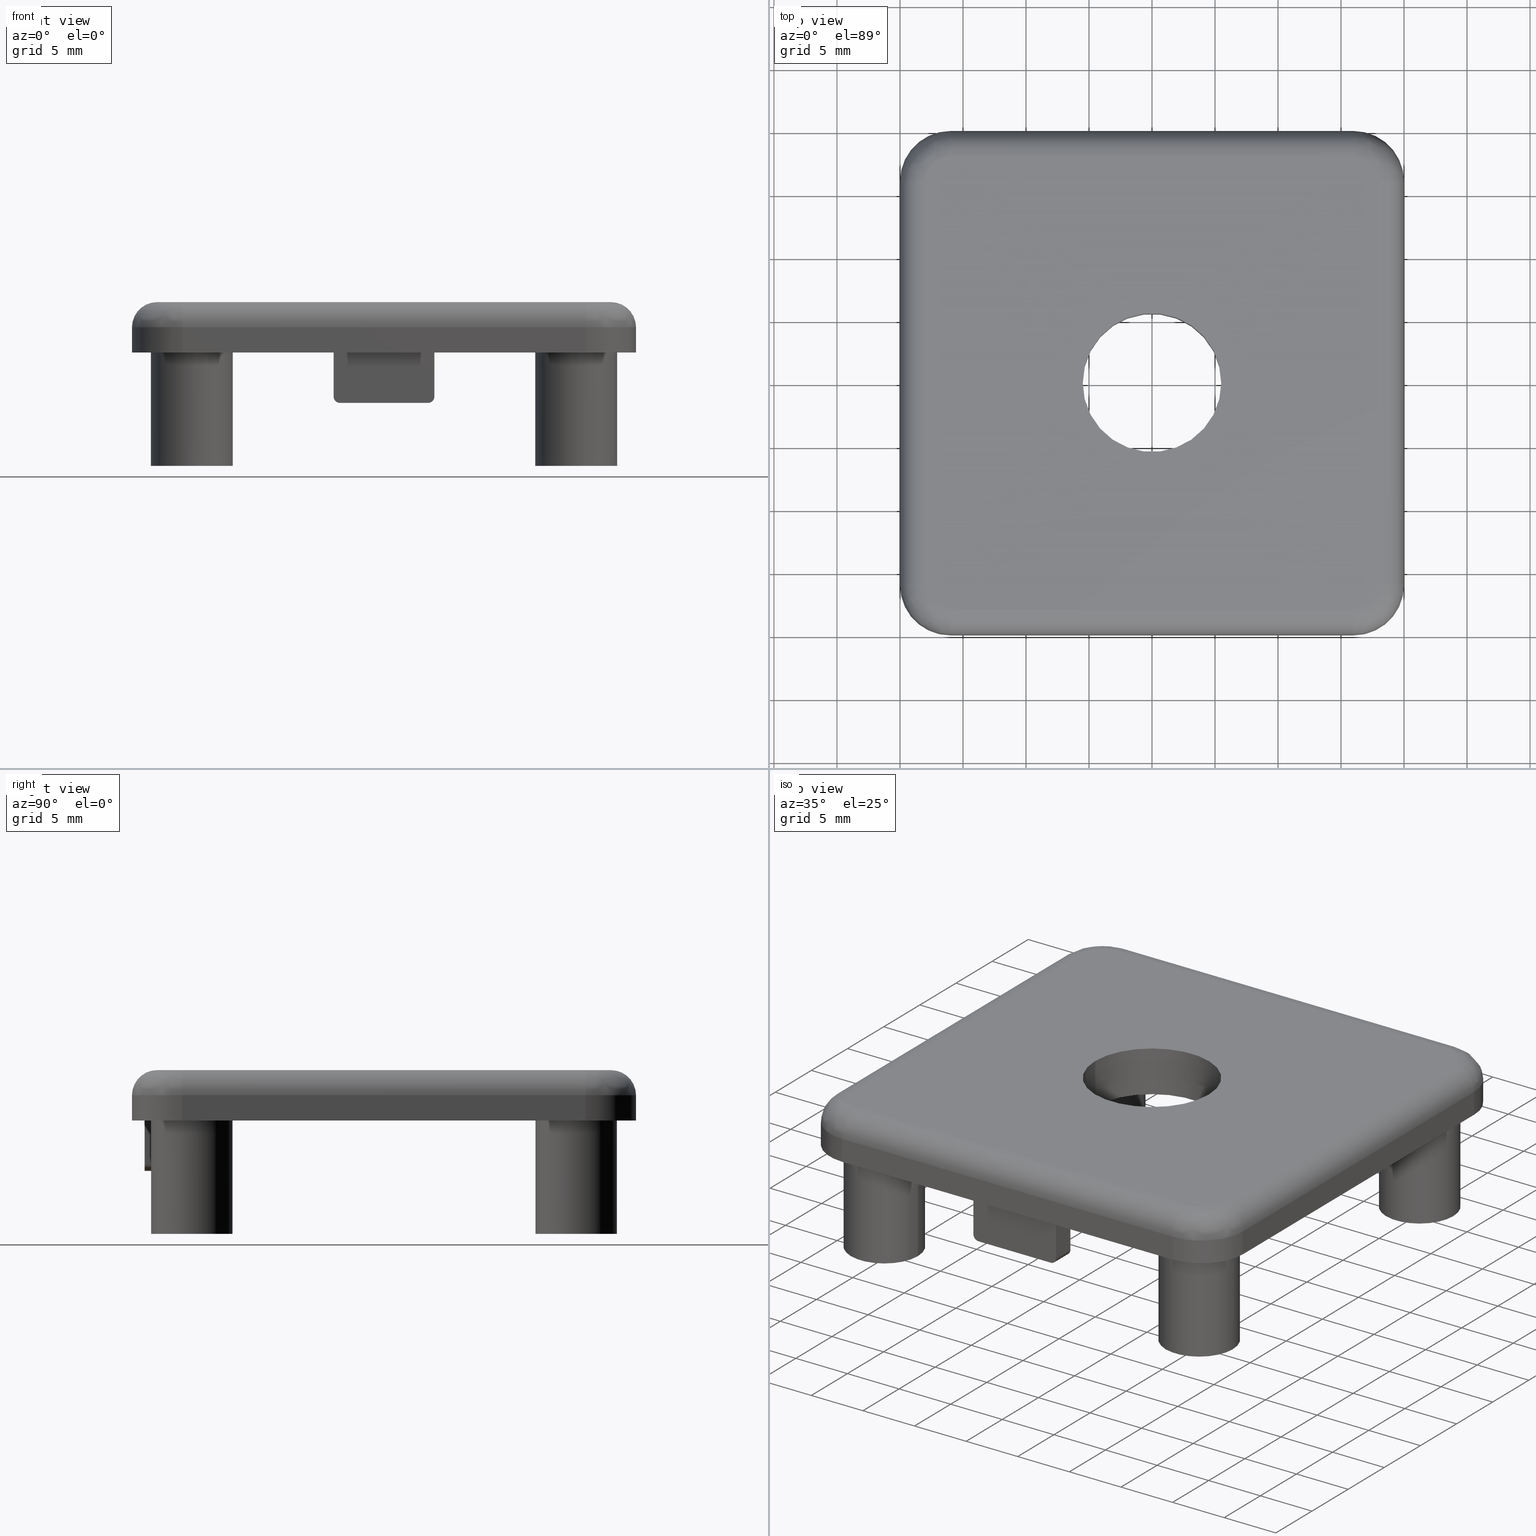
[diagram: canonical four-view strip — front | top / right | iso, engineering-drawing reading convention]
A machine part, canonical four-view strip (front | top / right | iso — engineering-drawing reading convention). The complete STEP part file that produces these views, byte-faithful:
ISO-10303-21;
HEADER;
/* Generated by software containing ST-Developer
 * from STEP Tools, Inc. (www.steptools.com) 
 */

FILE_DESCRIPTION(
/* description */ ('Abdeckkappe 40x40L mit Loch'),
/* implementation_level */ '2;1');

FILE_NAME(
/* name */ 
'T:\\Produktinformationen\\MT\\I40\\3D-Files I40\\Abdeckkappen\\281005
028 Abdeckkappe 40x40L mit Loch.stp',
/* time_stamp */ '2020-10-14T13:13:17+02:00',
/* author */ ('wheldmann'),
/* organization */ (''),
/* preprocessor_version */ 'ST-DEVELOPER v17.2',
/* originating_system */ 'Autodesk Inventor 2019',
/* authorisation */ '');

FILE_SCHEMA (('AUTOMOTIVE_DESIGN { 1 0 10303 214 3 1 1 }'));
ENDSEC;

DATA;
#10=MECHANICAL_DESIGN_GEOMETRIC_PRESENTATION_REPRESENTATION('',(#13),#1727);
#11=SHAPE_REPRESENTATION_RELATIONSHIP('SRR','None',#1734,#12);
#12=ADVANCED_BREP_SHAPE_REPRESENTATION('',(#14),#1726);
#13=STYLED_ITEM('',(#1743),#14);
#14=MANIFOLD_SOLID_BREP('Volumenk\X\F6rper1',#969);
#15=(
BOUNDED_SURFACE()
B_SPLINE_SURFACE(2,2,((#1627,#1628,#1629),(#1630,#1631,#1632),(#1633,#1634,
#1635)),.UNSPECIFIED.,.F.,.F.,.F.)
B_SPLINE_SURFACE_WITH_KNOTS((3,3),(3,3),(-1.57079632679489,4.22019776957444E-15),
(-3.14159265358979,-1.57079632679489),.UNSPECIFIED.)
GEOMETRIC_REPRESENTATION_ITEM()
RATIONAL_B_SPLINE_SURFACE(((1.,0.707106781186544,1.),(0.707106781186545,
0.499999999999996,0.707106781186545),(1.,0.707106781186544,1.)))
REPRESENTATION_ITEM('')
SURFACE()
);
#16=(
BOUNDED_SURFACE()
B_SPLINE_SURFACE(2,2,((#1650,#1651,#1652),(#1653,#1654,#1655),(#1656,#1657,
#1658)),.UNSPECIFIED.,.F.,.F.,.F.)
B_SPLINE_SURFACE_WITH_KNOTS((3,3),(3,3),(-1.57079632679495,1.08078699714222E-15),
(-1.57079632679497,8.20219088046051E-14),.UNSPECIFIED.)
GEOMETRIC_REPRESENTATION_ITEM()
RATIONAL_B_SPLINE_SURFACE(((1.,0.707106781186491,1.),(0.707106781186527,
0.499999999999946,0.707106781186527),(1.,0.707106781186491,1.)))
REPRESENTATION_ITEM('')
SURFACE()
);
#17=(
BOUNDED_SURFACE()
B_SPLINE_SURFACE(2,2,((#1670,#1671,#1672),(#1673,#1674,#1675),(#1676,#1677,
#1678)),.UNSPECIFIED.,.F.,.F.,.F.)
B_SPLINE_SURFACE_WITH_KNOTS((3,3),(3,3),(-1.57079632679487,7.08405772452993E-14),
(2.88657986402522E-14,1.57079632679487),.UNSPECIFIED.)
GEOMETRIC_REPRESENTATION_ITEM()
RATIONAL_B_SPLINE_SURFACE(((1.,0.707106781186568,1.),(0.707106781186535,
0.500000000000006,0.707106781186535),(1.,0.707106781186568,1.)))
REPRESENTATION_ITEM('')
SURFACE()
);
#18=(
BOUNDED_SURFACE()
B_SPLINE_SURFACE(2,2,((#1690,#1691,#1692),(#1693,#1694,#1695),(#1696,#1697,
#1698)),.UNSPECIFIED.,.F.,.F.,.F.)
B_SPLINE_SURFACE_WITH_KNOTS((3,3),(3,3),(-1.57079632679488,4.3071453157395E-14),
(1.57079632679495,3.1415926535898),.UNSPECIFIED.)
GEOMETRIC_REPRESENTATION_ITEM()
RATIONAL_B_SPLINE_SURFACE(((1.,0.707106781186567,1.),(0.70710678118654,
0.500000000000009,0.70710678118654),(1.,0.707106781186567,1.)))
REPRESENTATION_ITEM('')
SURFACE()
);
#19=FACE_BOUND('',#135,.T.);
#20=FACE_BOUND('',#147,.T.);
#21=FACE_BOUND('',#152,.T.);
#22=FACE_BOUND('',#154,.T.);
#23=FACE_BOUND('',#155,.T.);
#24=FACE_BOUND('',#156,.T.);
#25=FACE_BOUND('',#157,.T.);
#26=FACE_BOUND('',#158,.T.);
#27=FACE_BOUND('',#159,.T.);
#28=FACE_BOUND('',#160,.T.);
#29=FACE_BOUND('',#161,.T.);
#30=FACE_BOUND('',#162,.T.);
#31=FACE_BOUND('',#166,.T.);
#32=FACE_BOUND('',#171,.T.);
#33=FACE_BOUND('',#176,.T.);
#34=FACE_BOUND('',#200,.T.);
#35=PLANE('',#992);
#36=PLANE('',#993);
#37=PLANE('',#997);
#38=PLANE('',#998);
#39=PLANE('',#999);
#40=PLANE('',#1000);
#41=PLANE('',#1009);
#42=PLANE('',#1013);
#43=PLANE('',#1017);
#44=PLANE('',#1021);
#45=PLANE('',#1025);
#46=PLANE('',#1029);
#47=PLANE('',#1039);
#48=PLANE('',#1040);
#49=PLANE('',#1053);
#50=PLANE('',#1054);
#51=PLANE('',#1060);
#52=PLANE('',#1061);
#53=PLANE('',#1067);
#54=PLANE('',#1068);
#55=PLANE('',#1070);
#56=PLANE('',#1071);
#57=PLANE('',#1073);
#58=PLANE('',#1075);
#59=PLANE('',#1077);
#60=PLANE('',#1098);
#61=PLANE('',#1100);
#62=PLANE('',#1102);
#63=PLANE('',#1103);
#64=PLANE('',#1105);
#65=FACE_OUTER_BOUND('',#127,.T.);
#66=FACE_OUTER_BOUND('',#128,.T.);
#67=FACE_OUTER_BOUND('',#129,.T.);
#68=FACE_OUTER_BOUND('',#130,.T.);
#69=FACE_OUTER_BOUND('',#131,.T.);
#70=FACE_OUTER_BOUND('',#132,.T.);
#71=FACE_OUTER_BOUND('',#133,.T.);
#72=FACE_OUTER_BOUND('',#134,.T.);
#73=FACE_OUTER_BOUND('',#136,.T.);
#74=FACE_OUTER_BOUND('',#137,.T.);
#75=FACE_OUTER_BOUND('',#138,.T.);
#76=FACE_OUTER_BOUND('',#139,.T.);
#77=FACE_OUTER_BOUND('',#140,.T.);
#78=FACE_OUTER_BOUND('',#141,.T.);
#79=FACE_OUTER_BOUND('',#142,.T.);
#80=FACE_OUTER_BOUND('',#143,.T.);
#81=FACE_OUTER_BOUND('',#144,.T.);
#82=FACE_OUTER_BOUND('',#145,.T.);
#83=FACE_OUTER_BOUND('',#146,.T.);
#84=FACE_OUTER_BOUND('',#148,.T.);
#85=FACE_OUTER_BOUND('',#149,.T.);
#86=FACE_OUTER_BOUND('',#150,.T.);
#87=FACE_OUTER_BOUND('',#151,.T.);
#88=FACE_OUTER_BOUND('',#153,.T.);
#89=FACE_OUTER_BOUND('',#163,.T.);
#90=FACE_OUTER_BOUND('',#164,.T.);
#91=FACE_OUTER_BOUND('',#165,.T.);
#92=FACE_OUTER_BOUND('',#167,.T.);
#93=FACE_OUTER_BOUND('',#168,.T.);
#94=FACE_OUTER_BOUND('',#169,.T.);
#95=FACE_OUTER_BOUND('',#170,.T.);
#96=FACE_OUTER_BOUND('',#172,.T.);
#97=FACE_OUTER_BOUND('',#173,.T.);
#98=FACE_OUTER_BOUND('',#174,.T.);
#99=FACE_OUTER_BOUND('',#175,.T.);
#100=FACE_OUTER_BOUND('',#177,.T.);
#101=FACE_OUTER_BOUND('',#178,.T.);
#102=FACE_OUTER_BOUND('',#179,.T.);
#103=FACE_OUTER_BOUND('',#180,.T.);
#104=FACE_OUTER_BOUND('',#181,.T.);
#105=FACE_OUTER_BOUND('',#182,.T.);
#106=FACE_OUTER_BOUND('',#183,.T.);
#107=FACE_OUTER_BOUND('',#184,.T.);
#108=FACE_OUTER_BOUND('',#185,.T.);
#109=FACE_OUTER_BOUND('',#186,.T.);
#110=FACE_OUTER_BOUND('',#187,.T.);
#111=FACE_OUTER_BOUND('',#188,.T.);
#112=FACE_OUTER_BOUND('',#189,.T.);
#113=FACE_OUTER_BOUND('',#190,.T.);
#114=FACE_OUTER_BOUND('',#191,.T.);
#115=FACE_OUTER_BOUND('',#192,.T.);
#116=FACE_OUTER_BOUND('',#193,.T.);
#117=FACE_OUTER_BOUND('',#194,.T.);
#118=FACE_OUTER_BOUND('',#195,.T.);
#119=FACE_OUTER_BOUND('',#196,.T.);
#120=FACE_OUTER_BOUND('',#197,.T.);
#121=FACE_OUTER_BOUND('',#198,.T.);
#122=FACE_OUTER_BOUND('',#199,.T.);
#123=FACE_OUTER_BOUND('',#201,.T.);
#124=FACE_OUTER_BOUND('',#202,.T.);
#125=FACE_OUTER_BOUND('',#203,.T.);
#126=FACE_OUTER_BOUND('',#204,.T.);
#127=EDGE_LOOP('',(#619,#620,#621,#622));
#128=EDGE_LOOP('',(#623,#624,#625,#626,#627,#628));
#129=EDGE_LOOP('',(#629,#630,#631,#632,#633,#634));
#130=EDGE_LOOP('',(#635,#636,#637,#638));
#131=EDGE_LOOP('',(#639,#640,#641,#642,#643,#644));
#132=EDGE_LOOP('',(#645,#646,#647,#648,#649,#650));
#133=EDGE_LOOP('',(#651,#652,#653,#654));
#134=EDGE_LOOP('',(#655,#656,#657,#658,#659,#660,#661,#662));
#135=EDGE_LOOP('',(#663,#664,#665,#666,#667,#668,#669,#670,#671,#672,#673,
#674));
#136=EDGE_LOOP('',(#675,#676,#677,#678));
#137=EDGE_LOOP('',(#679,#680,#681,#682));
#138=EDGE_LOOP('',(#683));
#139=EDGE_LOOP('',(#684,#685,#686,#687));
#140=EDGE_LOOP('',(#688));
#141=EDGE_LOOP('',(#689,#690,#691,#692));
#142=EDGE_LOOP('',(#693));
#143=EDGE_LOOP('',(#694,#695,#696,#697));
#144=EDGE_LOOP('',(#698));
#145=EDGE_LOOP('',(#699,#700,#701,#702));
#146=EDGE_LOOP('',(#703));
#147=EDGE_LOOP('',(#704));
#148=EDGE_LOOP('',(#705,#706,#707,#708));
#149=EDGE_LOOP('',(#709,#710,#711,#712));
#150=EDGE_LOOP('',(#713,#714,#715,#716));
#151=EDGE_LOOP('',(#717));
#152=EDGE_LOOP('',(#718));
#153=EDGE_LOOP('',(#719,#720,#721,#722,#723,#724,#725,#726,#727,#728,#729,
#730));
#154=EDGE_LOOP('',(#731));
#155=EDGE_LOOP('',(#732));
#156=EDGE_LOOP('',(#733));
#157=EDGE_LOOP('',(#734));
#158=EDGE_LOOP('',(#735));
#159=EDGE_LOOP('',(#736));
#160=EDGE_LOOP('',(#737));
#161=EDGE_LOOP('',(#738));
#162=EDGE_LOOP('',(#739));
#163=EDGE_LOOP('',(#740,#741,#742,#743));
#164=EDGE_LOOP('',(#744,#745,#746,#747));
#165=EDGE_LOOP('',(#748));
#166=EDGE_LOOP('',(#749));
#167=EDGE_LOOP('',(#750));
#168=EDGE_LOOP('',(#751,#752,#753,#754));
#169=EDGE_LOOP('',(#755,#756,#757,#758));
#170=EDGE_LOOP('',(#759));
#171=EDGE_LOOP('',(#760));
#172=EDGE_LOOP('',(#761));
#173=EDGE_LOOP('',(#762,#763,#764,#765));
#174=EDGE_LOOP('',(#766,#767,#768,#769));
#175=EDGE_LOOP('',(#770));
#176=EDGE_LOOP('',(#771));
#177=EDGE_LOOP('',(#772));
#178=EDGE_LOOP('',(#773,#774,#775,#776));
#179=EDGE_LOOP('',(#777,#778,#779,#780));
#180=EDGE_LOOP('',(#781));
#181=EDGE_LOOP('',(#782,#783,#784,#785));
#182=EDGE_LOOP('',(#786,#787,#788,#789));
#183=EDGE_LOOP('',(#790,#791,#792,#793));
#184=EDGE_LOOP('',(#794,#795,#796,#797));
#185=EDGE_LOOP('',(#798,#799,#800,#801));
#186=EDGE_LOOP('',(#802,#803,#804,#805));
#187=EDGE_LOOP('',(#806,#807,#808,#809));
#188=EDGE_LOOP('',(#810,#811,#812,#813));
#189=EDGE_LOOP('',(#814,#815,#816,#817));
#190=EDGE_LOOP('',(#818,#819,#820,#821));
#191=EDGE_LOOP('',(#822,#823,#824,#825));
#192=EDGE_LOOP('',(#826,#827,#828,#829));
#193=EDGE_LOOP('',(#830,#831,#832,#833));
#194=EDGE_LOOP('',(#834,#835,#836,#837));
#195=EDGE_LOOP('',(#838,#839,#840,#841));
#196=EDGE_LOOP('',(#842,#843,#844,#845));
#197=EDGE_LOOP('',(#846,#847,#848,#849));
#198=EDGE_LOOP('',(#850,#851,#852,#853));
#199=EDGE_LOOP('',(#854,#855,#856,#857,#858,#859,#860,#861));
#200=EDGE_LOOP('',(#862));
#201=EDGE_LOOP('',(#863,#864,#865,#866));
#202=EDGE_LOOP('',(#867,#868,#869,#870));
#203=EDGE_LOOP('',(#871,#872,#873,#874));
#204=EDGE_LOOP('',(#875,#876,#877,#878));
#205=LINE('',#1421,#275);
#206=LINE('',#1424,#276);
#207=LINE('',#1427,#277);
#208=LINE('',#1429,#278);
#209=LINE('',#1431,#279);
#210=LINE('',#1433,#280);
#211=LINE('',#1434,#281);
#212=LINE('',#1437,#282);
#213=LINE('',#1441,#283);
#214=LINE('',#1442,#284);
#215=LINE('',#1445,#285);
#216=LINE('',#1448,#286);
#217=LINE('',#1451,#287);
#218=LINE('',#1453,#288);
#219=LINE('',#1455,#289);
#220=LINE('',#1456,#290);
#221=LINE('',#1458,#291);
#222=LINE('',#1459,#292);
#223=LINE('',#1466,#293);
#224=LINE('',#1470,#294);
#225=LINE('',#1474,#295);
#226=LINE('',#1477,#296);
#227=LINE('',#1479,#297);
#228=LINE('',#1483,#298);
#229=LINE('',#1487,#299);
#230=LINE('',#1491,#300);
#231=LINE('',#1494,#301);
#232=LINE('',#1497,#302);
#233=LINE('',#1498,#303);
#234=LINE('',#1503,#304);
#235=LINE('',#1510,#305);
#236=LINE('',#1517,#306);
#237=LINE('',#1524,#307);
#238=LINE('',#1531,#308);
#239=LINE('',#1538,#309);
#240=LINE('',#1544,#310);
#241=LINE('',#1550,#311);
#242=LINE('',#1555,#312);
#243=LINE('',#1559,#313);
#244=LINE('',#1563,#314);
#245=LINE('',#1567,#315);
#246=LINE('',#1579,#316);
#247=LINE('',#1583,#317);
#248=LINE('',#1591,#318);
#249=LINE('',#1595,#319);
#250=LINE('',#1603,#320);
#251=LINE('',#1608,#321);
#252=LINE('',#1612,#322);
#253=LINE('',#1613,#323);
#254=LINE('',#1617,#324);
#255=LINE('',#1619,#325);
#256=LINE('',#1621,#326);
#257=LINE('',#1622,#327);
#258=LINE('',#1624,#328);
#259=LINE('',#1648,#329);
#260=LINE('',#1649,#330);
#261=LINE('',#1668,#331);
#262=LINE('',#1669,#332);
#263=LINE('',#1688,#333);
#264=LINE('',#1689,#334);
#265=LINE('',#1705,#335);
#266=LINE('',#1706,#336);
#267=LINE('',#1708,#337);
#268=LINE('',#1709,#338);
#269=LINE('',#1711,#339);
#270=LINE('',#1713,#340);
#271=LINE('',#1715,#341);
#272=LINE('',#1718,#342);
#273=LINE('',#1720,#343);
#274=LINE('',#1722,#344);
#275=VECTOR('',#1113,2.);
#276=VECTOR('',#1116,2.);
#277=VECTOR('',#1119,3.5);
#278=VECTOR('',#1120,0.999999999999996);
#279=VECTOR('',#1121,2.);
#280=VECTOR('',#1122,1.);
#281=VECTOR('',#1123,5.5);
#282=VECTOR('',#1126,7.);
#283=VECTOR('',#1129,3.5);
#284=VECTOR('',#1130,8.);
#285=VECTOR('',#1133,2.);
#286=VECTOR('',#1136,2.);
#287=VECTOR('',#1139,5.5);
#288=VECTOR('',#1140,0.999999999999999);
#289=VECTOR('',#1141,2.);
#290=VECTOR('',#1142,0.999999999999999);
#291=VECTOR('',#1145,8.);
#292=VECTOR('',#1146,7.);
#293=VECTOR('',#1153,32.);
#294=VECTOR('',#1156,32.);
#295=VECTOR('',#1159,32.);
#296=VECTOR('',#1162,32.);
#297=VECTOR('',#1163,8.34526249034444);
#298=VECTOR('',#1166,24.6905249806889);
#299=VECTOR('',#1169,24.6905249806889);
#300=VECTOR('',#1172,24.6905249806889);
#301=VECTOR('',#1175,8.34526249034443);
#302=VECTOR('',#1178,8.34526249034444);
#303=VECTOR('',#1179,2.);
#304=VECTOR('',#1184,1.);
#305=VECTOR('',#1193,1.);
#306=VECTOR('',#1202,1.);
#307=VECTOR('',#1211,1.);
#308=VECTOR('',#1220,8.);
#309=VECTOR('',#1229,5.5);
#310=VECTOR('',#1236,2.);
#311=VECTOR('',#1243,3.25);
#312=VECTOR('',#1250,8.34526249034443);
#313=VECTOR('',#1253,24.6905249806889);
#314=VECTOR('',#1256,24.6905249806889);
#315=VECTOR('',#1259,24.6905249806889);
#316=VECTOR('',#1272,2.);
#317=VECTOR('',#1277,3.25);
#318=VECTOR('',#1288,2.);
#319=VECTOR('',#1293,3.25);
#320=VECTOR('',#1304,2.);
#321=VECTOR('',#1311,3.25);
#322=VECTOR('',#1318,2.);
#323=VECTOR('',#1319,2.);
#324=VECTOR('',#1326,2.);
#325=VECTOR('',#1329,2.);
#326=VECTOR('',#1332,2.);
#327=VECTOR('',#1333,2.);
#328=VECTOR('',#1336,2.);
#329=VECTOR('',#1353,32.);
#330=VECTOR('',#1354,32.);
#331=VECTOR('',#1365,32.);
#332=VECTOR('',#1366,32.);
#333=VECTOR('',#1377,32.);
#334=VECTOR('',#1378,32.);
#335=VECTOR('',#1387,32.);
#336=VECTOR('',#1388,32.);
#337=VECTOR('',#1391,2.);
#338=VECTOR('',#1392,2.);
#339=VECTOR('',#1395,2.);
#340=VECTOR('',#1398,2.);
#341=VECTOR('',#1401,2.);
#342=VECTOR('',#1406,2.);
#343=VECTOR('',#1409,2.);
#344=VECTOR('',#1412,2.);
#345=CIRCLE('',#990,0.5);
#346=CIRCLE('',#991,0.5);
#347=CIRCLE('',#994,0.5);
#348=CIRCLE('',#996,0.5);
#349=CIRCLE('',#1001,4.);
#350=CIRCLE('',#1002,4.);
#351=CIRCLE('',#1003,4.);
#352=CIRCLE('',#1004,4.);
#353=CIRCLE('',#1005,4.);
#354=CIRCLE('',#1006,4.);
#355=CIRCLE('',#1007,4.);
#356=CIRCLE('',#1008,4.);
#357=CIRCLE('',#1011,1.);
#358=CIRCLE('',#1012,1.);
#359=CIRCLE('',#1015,1.);
#360=CIRCLE('',#1016,1.);
#361=CIRCLE('',#1019,1.);
#362=CIRCLE('',#1020,1.);
#363=CIRCLE('',#1023,1.);
#364=CIRCLE('',#1024,1.);
#365=CIRCLE('',#1027,8.);
#366=CIRCLE('',#1028,8.);
#367=CIRCLE('',#1030,5.5);
#368=CIRCLE('',#1032,5.5);
#369=CIRCLE('',#1034,2.);
#370=CIRCLE('',#1035,2.);
#371=CIRCLE('',#1037,3.25);
#372=CIRCLE('',#1038,3.25);
#373=CIRCLE('',#1041,4.);
#374=CIRCLE('',#1042,4.);
#375=CIRCLE('',#1043,4.);
#376=CIRCLE('',#1044,4.);
#377=CIRCLE('',#1045,3.25);
#378=CIRCLE('',#1046,3.25);
#379=CIRCLE('',#1047,3.25);
#380=CIRCLE('',#1049,2.);
#381=CIRCLE('',#1050,2.);
#382=CIRCLE('',#1052,3.25);
#383=CIRCLE('',#1056,2.);
#384=CIRCLE('',#1057,2.);
#385=CIRCLE('',#1059,3.25);
#386=CIRCLE('',#1063,2.);
#387=CIRCLE('',#1064,2.);
#388=CIRCLE('',#1066,3.25);
#389=CIRCLE('',#1078,2.);
#390=CIRCLE('',#1079,2.);
#391=CIRCLE('',#1080,2.);
#392=CIRCLE('',#1081,4.);
#393=CIRCLE('',#1083,2.);
#394=CIRCLE('',#1084,2.);
#395=CIRCLE('',#1085,4.);
#396=CIRCLE('',#1086,2.);
#397=CIRCLE('',#1088,2.);
#398=CIRCLE('',#1089,2.);
#399=CIRCLE('',#1090,4.);
#400=CIRCLE('',#1091,2.);
#401=CIRCLE('',#1093,2.);
#402=CIRCLE('',#1094,2.);
#403=CIRCLE('',#1095,4.);
#404=CIRCLE('',#1096,2.);
#405=VERTEX_POINT('',#1417);
#406=VERTEX_POINT('',#1418);
#407=VERTEX_POINT('',#1420);
#408=VERTEX_POINT('',#1422);
#409=VERTEX_POINT('',#1426);
#410=VERTEX_POINT('',#1428);
#411=VERTEX_POINT('',#1430);
#412=VERTEX_POINT('',#1432);
#413=VERTEX_POINT('',#1436);
#414=VERTEX_POINT('',#1438);
#415=VERTEX_POINT('',#1440);
#416=VERTEX_POINT('',#1444);
#417=VERTEX_POINT('',#1446);
#418=VERTEX_POINT('',#1450);
#419=VERTEX_POINT('',#1452);
#420=VERTEX_POINT('',#1454);
#421=VERTEX_POINT('',#1462);
#422=VERTEX_POINT('',#1463);
#423=VERTEX_POINT('',#1465);
#424=VERTEX_POINT('',#1467);
#425=VERTEX_POINT('',#1469);
#426=VERTEX_POINT('',#1471);
#427=VERTEX_POINT('',#1473);
#428=VERTEX_POINT('',#1475);
#429=VERTEX_POINT('',#1478);
#430=VERTEX_POINT('',#1480);
#431=VERTEX_POINT('',#1482);
#432=VERTEX_POINT('',#1484);
#433=VERTEX_POINT('',#1486);
#434=VERTEX_POINT('',#1488);
#435=VERTEX_POINT('',#1490);
#436=VERTEX_POINT('',#1492);
#437=VERTEX_POINT('',#1496);
#438=VERTEX_POINT('',#1500);
#439=VERTEX_POINT('',#1502);
#440=VERTEX_POINT('',#1507);
#441=VERTEX_POINT('',#1509);
#442=VERTEX_POINT('',#1514);
#443=VERTEX_POINT('',#1516);
#444=VERTEX_POINT('',#1521);
#445=VERTEX_POINT('',#1523);
#446=VERTEX_POINT('',#1528);
#447=VERTEX_POINT('',#1530);
#448=VERTEX_POINT('',#1534);
#449=VERTEX_POINT('',#1537);
#450=VERTEX_POINT('',#1541);
#451=VERTEX_POINT('',#1543);
#452=VERTEX_POINT('',#1547);
#453=VERTEX_POINT('',#1549);
#454=VERTEX_POINT('',#1554);
#455=VERTEX_POINT('',#1556);
#456=VERTEX_POINT('',#1558);
#457=VERTEX_POINT('',#1560);
#458=VERTEX_POINT('',#1562);
#459=VERTEX_POINT('',#1564);
#460=VERTEX_POINT('',#1566);
#461=VERTEX_POINT('',#1569);
#462=VERTEX_POINT('',#1571);
#463=VERTEX_POINT('',#1573);
#464=VERTEX_POINT('',#1576);
#465=VERTEX_POINT('',#1578);
#466=VERTEX_POINT('',#1582);
#467=VERTEX_POINT('',#1588);
#468=VERTEX_POINT('',#1590);
#469=VERTEX_POINT('',#1594);
#470=VERTEX_POINT('',#1600);
#471=VERTEX_POINT('',#1602);
#472=VERTEX_POINT('',#1606);
#473=VERTEX_POINT('',#1636);
#474=VERTEX_POINT('',#1637);
#475=VERTEX_POINT('',#1639);
#476=VERTEX_POINT('',#1641);
#477=VERTEX_POINT('',#1645);
#478=VERTEX_POINT('',#1646);
#479=VERTEX_POINT('',#1659);
#480=VERTEX_POINT('',#1660);
#481=VERTEX_POINT('',#1665);
#482=VERTEX_POINT('',#1666);
#483=VERTEX_POINT('',#1679);
#484=VERTEX_POINT('',#1680);
#485=VERTEX_POINT('',#1685);
#486=VERTEX_POINT('',#1686);
#487=VERTEX_POINT('',#1699);
#488=VERTEX_POINT('',#1700);
#489=EDGE_CURVE('',#405,#406,#345,.T.);
#490=EDGE_CURVE('',#406,#407,#205,.T.);
#491=EDGE_CURVE('',#407,#408,#346,.T.);
#492=EDGE_CURVE('',#408,#405,#206,.T.);
#493=EDGE_CURVE('',#409,#408,#207,.T.);
#494=EDGE_CURVE('',#410,#409,#208,.T.);
#495=EDGE_CURVE('',#411,#410,#209,.T.);
#496=EDGE_CURVE('',#412,#411,#210,.T.);
#497=EDGE_CURVE('',#412,#405,#211,.T.);
#498=EDGE_CURVE('',#413,#407,#212,.T.);
#499=EDGE_CURVE('',#414,#413,#347,.T.);
#500=EDGE_CURVE('',#415,#414,#213,.T.);
#501=EDGE_CURVE('',#409,#415,#214,.T.);
#502=EDGE_CURVE('',#413,#416,#215,.T.);
#503=EDGE_CURVE('',#416,#417,#348,.T.);
#504=EDGE_CURVE('',#417,#414,#216,.T.);
#505=EDGE_CURVE('',#418,#417,#217,.T.);
#506=EDGE_CURVE('',#419,#418,#218,.T.);
#507=EDGE_CURVE('',#420,#419,#219,.T.);
#508=EDGE_CURVE('',#415,#420,#220,.T.);
#509=EDGE_CURVE('',#418,#412,#221,.T.);
#510=EDGE_CURVE('',#406,#416,#222,.T.);
#511=EDGE_CURVE('',#421,#422,#349,.T.);
#512=EDGE_CURVE('',#421,#423,#223,.T.);
#513=EDGE_CURVE('',#424,#423,#350,.T.);
#514=EDGE_CURVE('',#424,#425,#224,.T.);
#515=EDGE_CURVE('',#426,#425,#351,.T.);
#516=EDGE_CURVE('',#426,#427,#225,.T.);
#517=EDGE_CURVE('',#428,#427,#352,.T.);
#518=EDGE_CURVE('',#428,#422,#226,.T.);
#519=EDGE_CURVE('',#420,#429,#227,.T.);
#520=EDGE_CURVE('',#429,#430,#353,.T.);
#521=EDGE_CURVE('',#430,#431,#228,.T.);
#522=EDGE_CURVE('',#431,#432,#354,.T.);
#523=EDGE_CURVE('',#432,#433,#229,.T.);
#524=EDGE_CURVE('',#433,#434,#355,.T.);
#525=EDGE_CURVE('',#434,#435,#230,.T.);
#526=EDGE_CURVE('',#435,#436,#356,.T.);
#527=EDGE_CURVE('',#436,#410,#231,.T.);
#528=EDGE_CURVE('',#419,#437,#232,.T.);
#529=EDGE_CURVE('',#437,#429,#233,.T.);
#530=EDGE_CURVE('',#438,#438,#357,.T.);
#531=EDGE_CURVE('',#438,#439,#234,.T.);
#532=EDGE_CURVE('',#439,#439,#358,.T.);
#533=EDGE_CURVE('',#440,#440,#359,.T.);
#534=EDGE_CURVE('',#440,#441,#235,.T.);
#535=EDGE_CURVE('',#441,#441,#360,.T.);
#536=EDGE_CURVE('',#442,#442,#361,.T.);
#537=EDGE_CURVE('',#442,#443,#236,.T.);
#538=EDGE_CURVE('',#443,#443,#362,.T.);
#539=EDGE_CURVE('',#444,#444,#363,.T.);
#540=EDGE_CURVE('',#444,#445,#237,.T.);
#541=EDGE_CURVE('',#445,#445,#364,.T.);
#542=EDGE_CURVE('',#446,#446,#365,.T.);
#543=EDGE_CURVE('',#446,#447,#238,.T.);
#544=EDGE_CURVE('',#447,#447,#366,.T.);
#545=EDGE_CURVE('',#448,#448,#367,.T.);
#546=EDGE_CURVE('',#448,#449,#239,.T.);
#547=EDGE_CURVE('',#449,#449,#368,.T.);
#548=EDGE_CURVE('',#450,#450,#369,.T.);
#549=EDGE_CURVE('',#450,#451,#240,.T.);
#550=EDGE_CURVE('',#451,#451,#370,.T.);
#551=EDGE_CURVE('',#452,#452,#371,.T.);
#552=EDGE_CURVE('',#452,#453,#241,.T.);
#553=EDGE_CURVE('',#453,#453,#372,.T.);
#554=EDGE_CURVE('',#454,#411,#242,.T.);
#555=EDGE_CURVE('',#455,#454,#373,.T.);
#556=EDGE_CURVE('',#456,#455,#243,.T.);
#557=EDGE_CURVE('',#456,#457,#374,.T.);
#558=EDGE_CURVE('',#458,#457,#244,.T.);
#559=EDGE_CURVE('',#459,#458,#375,.T.);
#560=EDGE_CURVE('',#460,#459,#245,.T.);
#561=EDGE_CURVE('',#460,#437,#376,.T.);
#562=EDGE_CURVE('',#461,#461,#377,.T.);
#563=EDGE_CURVE('',#462,#462,#378,.T.);
#564=EDGE_CURVE('',#463,#463,#379,.T.);
#565=EDGE_CURVE('',#464,#464,#380,.T.);
#566=EDGE_CURVE('',#464,#465,#246,.T.);
#567=EDGE_CURVE('',#465,#465,#381,.T.);
#568=EDGE_CURVE('',#461,#466,#247,.T.);
#569=EDGE_CURVE('',#466,#466,#382,.T.);
#570=EDGE_CURVE('',#467,#467,#383,.T.);
#571=EDGE_CURVE('',#467,#468,#248,.T.);
#572=EDGE_CURVE('',#468,#468,#384,.T.);
#573=EDGE_CURVE('',#463,#469,#249,.T.);
#574=EDGE_CURVE('',#469,#469,#385,.T.);
#575=EDGE_CURVE('',#470,#470,#386,.T.);
#576=EDGE_CURVE('',#470,#471,#250,.T.);
#577=EDGE_CURVE('',#471,#471,#387,.T.);
#578=EDGE_CURVE('',#472,#472,#388,.T.);
#579=EDGE_CURVE('',#472,#462,#251,.T.);
#580=EDGE_CURVE('',#436,#454,#252,.T.);
#581=EDGE_CURVE('',#455,#435,#253,.T.);
#582=EDGE_CURVE('',#430,#460,#254,.T.);
#583=EDGE_CURVE('',#459,#431,#255,.T.);
#584=EDGE_CURVE('',#434,#456,#256,.T.);
#585=EDGE_CURVE('',#457,#433,#257,.T.);
#586=EDGE_CURVE('',#432,#458,#258,.T.);
#587=EDGE_CURVE('',#473,#474,#389,.T.);
#588=EDGE_CURVE('',#474,#475,#390,.T.);
#589=EDGE_CURVE('',#475,#476,#391,.T.);
#590=EDGE_CURVE('',#476,#473,#392,.T.);
#591=EDGE_CURVE('',#477,#478,#393,.T.);
#592=EDGE_CURVE('',#478,#476,#259,.T.);
#593=EDGE_CURVE('',#475,#477,#260,.T.);
#594=EDGE_CURVE('',#479,#480,#394,.T.);
#595=EDGE_CURVE('',#480,#478,#395,.T.);
#596=EDGE_CURVE('',#477,#479,#396,.T.);
#597=EDGE_CURVE('',#481,#482,#397,.T.);
#598=EDGE_CURVE('',#482,#480,#261,.T.);
#599=EDGE_CURVE('',#479,#481,#262,.T.);
#600=EDGE_CURVE('',#483,#484,#398,.T.);
#601=EDGE_CURVE('',#484,#482,#399,.T.);
#602=EDGE_CURVE('',#481,#483,#400,.T.);
#603=EDGE_CURVE('',#485,#486,#401,.T.);
#604=EDGE_CURVE('',#486,#484,#263,.T.);
#605=EDGE_CURVE('',#483,#485,#264,.T.);
#606=EDGE_CURVE('',#487,#488,#402,.T.);
#607=EDGE_CURVE('',#488,#486,#403,.T.);
#608=EDGE_CURVE('',#485,#487,#404,.T.);
#609=EDGE_CURVE('',#487,#474,#265,.T.);
#610=EDGE_CURVE('',#473,#488,#266,.T.);
#611=EDGE_CURVE('',#427,#486,#267,.T.);
#612=EDGE_CURVE('',#484,#426,#268,.T.);
#613=EDGE_CURVE('',#488,#428,#269,.T.);
#614=EDGE_CURVE('',#422,#473,#270,.T.);
#615=EDGE_CURVE('',#476,#421,#271,.T.);
#616=EDGE_CURVE('',#423,#478,#272,.T.);
#617=EDGE_CURVE('',#480,#424,#273,.T.);
#618=EDGE_CURVE('',#425,#482,#274,.T.);
#619=ORIENTED_EDGE('',*,*,#489,.T.);
#620=ORIENTED_EDGE('',*,*,#490,.T.);
#621=ORIENTED_EDGE('',*,*,#491,.T.);
#622=ORIENTED_EDGE('',*,*,#492,.T.);
#623=ORIENTED_EDGE('',*,*,#492,.F.);
#624=ORIENTED_EDGE('',*,*,#493,.F.);
#625=ORIENTED_EDGE('',*,*,#494,.F.);
#626=ORIENTED_EDGE('',*,*,#495,.F.);
#627=ORIENTED_EDGE('',*,*,#496,.F.);
#628=ORIENTED_EDGE('',*,*,#497,.T.);
#629=ORIENTED_EDGE('',*,*,#491,.F.);
#630=ORIENTED_EDGE('',*,*,#498,.F.);
#631=ORIENTED_EDGE('',*,*,#499,.F.);
#632=ORIENTED_EDGE('',*,*,#500,.F.);
#633=ORIENTED_EDGE('',*,*,#501,.F.);
#634=ORIENTED_EDGE('',*,*,#493,.T.);
#635=ORIENTED_EDGE('',*,*,#499,.T.);
#636=ORIENTED_EDGE('',*,*,#502,.T.);
#637=ORIENTED_EDGE('',*,*,#503,.T.);
#638=ORIENTED_EDGE('',*,*,#504,.T.);
#639=ORIENTED_EDGE('',*,*,#504,.F.);
#640=ORIENTED_EDGE('',*,*,#505,.F.);
#641=ORIENTED_EDGE('',*,*,#506,.F.);
#642=ORIENTED_EDGE('',*,*,#507,.F.);
#643=ORIENTED_EDGE('',*,*,#508,.F.);
#644=ORIENTED_EDGE('',*,*,#500,.T.);
#645=ORIENTED_EDGE('',*,*,#489,.F.);
#646=ORIENTED_EDGE('',*,*,#497,.F.);
#647=ORIENTED_EDGE('',*,*,#509,.F.);
#648=ORIENTED_EDGE('',*,*,#505,.T.);
#649=ORIENTED_EDGE('',*,*,#503,.F.);
#650=ORIENTED_EDGE('',*,*,#510,.F.);
#651=ORIENTED_EDGE('',*,*,#490,.F.);
#652=ORIENTED_EDGE('',*,*,#510,.T.);
#653=ORIENTED_EDGE('',*,*,#502,.F.);
#654=ORIENTED_EDGE('',*,*,#498,.T.);
#655=ORIENTED_EDGE('',*,*,#511,.F.);
#656=ORIENTED_EDGE('',*,*,#512,.T.);
#657=ORIENTED_EDGE('',*,*,#513,.F.);
#658=ORIENTED_EDGE('',*,*,#514,.T.);
#659=ORIENTED_EDGE('',*,*,#515,.F.);
#660=ORIENTED_EDGE('',*,*,#516,.T.);
#661=ORIENTED_EDGE('',*,*,#517,.F.);
#662=ORIENTED_EDGE('',*,*,#518,.T.);
#663=ORIENTED_EDGE('',*,*,#494,.T.);
#664=ORIENTED_EDGE('',*,*,#501,.T.);
#665=ORIENTED_EDGE('',*,*,#508,.T.);
#666=ORIENTED_EDGE('',*,*,#519,.T.);
#667=ORIENTED_EDGE('',*,*,#520,.T.);
#668=ORIENTED_EDGE('',*,*,#521,.T.);
#669=ORIENTED_EDGE('',*,*,#522,.T.);
#670=ORIENTED_EDGE('',*,*,#523,.T.);
#671=ORIENTED_EDGE('',*,*,#524,.T.);
#672=ORIENTED_EDGE('',*,*,#525,.T.);
#673=ORIENTED_EDGE('',*,*,#526,.T.);
#674=ORIENTED_EDGE('',*,*,#527,.T.);
#675=ORIENTED_EDGE('',*,*,#507,.T.);
#676=ORIENTED_EDGE('',*,*,#528,.T.);
#677=ORIENTED_EDGE('',*,*,#529,.T.);
#678=ORIENTED_EDGE('',*,*,#519,.F.);
#679=ORIENTED_EDGE('',*,*,#530,.F.);
#680=ORIENTED_EDGE('',*,*,#531,.T.);
#681=ORIENTED_EDGE('',*,*,#532,.F.);
#682=ORIENTED_EDGE('',*,*,#531,.F.);
#683=ORIENTED_EDGE('',*,*,#530,.T.);
#684=ORIENTED_EDGE('',*,*,#533,.F.);
#685=ORIENTED_EDGE('',*,*,#534,.T.);
#686=ORIENTED_EDGE('',*,*,#535,.T.);
#687=ORIENTED_EDGE('',*,*,#534,.F.);
#688=ORIENTED_EDGE('',*,*,#535,.F.);
#689=ORIENTED_EDGE('',*,*,#536,.F.);
#690=ORIENTED_EDGE('',*,*,#537,.T.);
#691=ORIENTED_EDGE('',*,*,#538,.T.);
#692=ORIENTED_EDGE('',*,*,#537,.F.);
#693=ORIENTED_EDGE('',*,*,#538,.F.);
#694=ORIENTED_EDGE('',*,*,#539,.F.);
#695=ORIENTED_EDGE('',*,*,#540,.T.);
#696=ORIENTED_EDGE('',*,*,#541,.F.);
#697=ORIENTED_EDGE('',*,*,#540,.F.);
#698=ORIENTED_EDGE('',*,*,#539,.T.);
#699=ORIENTED_EDGE('',*,*,#542,.F.);
#700=ORIENTED_EDGE('',*,*,#543,.T.);
#701=ORIENTED_EDGE('',*,*,#544,.F.);
#702=ORIENTED_EDGE('',*,*,#543,.F.);
#703=ORIENTED_EDGE('',*,*,#542,.T.);
#704=ORIENTED_EDGE('',*,*,#545,.T.);
#705=ORIENTED_EDGE('',*,*,#545,.F.);
#706=ORIENTED_EDGE('',*,*,#546,.T.);
#707=ORIENTED_EDGE('',*,*,#547,.F.);
#708=ORIENTED_EDGE('',*,*,#546,.F.);
#709=ORIENTED_EDGE('',*,*,#548,.F.);
#710=ORIENTED_EDGE('',*,*,#549,.T.);
#711=ORIENTED_EDGE('',*,*,#550,.F.);
#712=ORIENTED_EDGE('',*,*,#549,.F.);
#713=ORIENTED_EDGE('',*,*,#551,.F.);
#714=ORIENTED_EDGE('',*,*,#552,.T.);
#715=ORIENTED_EDGE('',*,*,#553,.F.);
#716=ORIENTED_EDGE('',*,*,#552,.F.);
#717=ORIENTED_EDGE('',*,*,#551,.T.);
#718=ORIENTED_EDGE('',*,*,#550,.T.);
#719=ORIENTED_EDGE('',*,*,#496,.T.);
#720=ORIENTED_EDGE('',*,*,#554,.F.);
#721=ORIENTED_EDGE('',*,*,#555,.F.);
#722=ORIENTED_EDGE('',*,*,#556,.F.);
#723=ORIENTED_EDGE('',*,*,#557,.T.);
#724=ORIENTED_EDGE('',*,*,#558,.F.);
#725=ORIENTED_EDGE('',*,*,#559,.F.);
#726=ORIENTED_EDGE('',*,*,#560,.F.);
#727=ORIENTED_EDGE('',*,*,#561,.T.);
#728=ORIENTED_EDGE('',*,*,#528,.F.);
#729=ORIENTED_EDGE('',*,*,#506,.T.);
#730=ORIENTED_EDGE('',*,*,#509,.T.);
#731=ORIENTED_EDGE('',*,*,#532,.T.);
#732=ORIENTED_EDGE('',*,*,#533,.T.);
#733=ORIENTED_EDGE('',*,*,#536,.T.);
#734=ORIENTED_EDGE('',*,*,#541,.T.);
#735=ORIENTED_EDGE('',*,*,#544,.T.);
#736=ORIENTED_EDGE('',*,*,#562,.T.);
#737=ORIENTED_EDGE('',*,*,#563,.T.);
#738=ORIENTED_EDGE('',*,*,#564,.T.);
#739=ORIENTED_EDGE('',*,*,#553,.T.);
#740=ORIENTED_EDGE('',*,*,#565,.T.);
#741=ORIENTED_EDGE('',*,*,#566,.T.);
#742=ORIENTED_EDGE('',*,*,#567,.F.);
#743=ORIENTED_EDGE('',*,*,#566,.F.);
#744=ORIENTED_EDGE('',*,*,#562,.F.);
#745=ORIENTED_EDGE('',*,*,#568,.T.);
#746=ORIENTED_EDGE('',*,*,#569,.T.);
#747=ORIENTED_EDGE('',*,*,#568,.F.);
#748=ORIENTED_EDGE('',*,*,#569,.F.);
#749=ORIENTED_EDGE('',*,*,#565,.F.);
#750=ORIENTED_EDGE('',*,*,#548,.T.);
#751=ORIENTED_EDGE('',*,*,#570,.T.);
#752=ORIENTED_EDGE('',*,*,#571,.T.);
#753=ORIENTED_EDGE('',*,*,#572,.F.);
#754=ORIENTED_EDGE('',*,*,#571,.F.);
#755=ORIENTED_EDGE('',*,*,#564,.F.);
#756=ORIENTED_EDGE('',*,*,#573,.T.);
#757=ORIENTED_EDGE('',*,*,#574,.T.);
#758=ORIENTED_EDGE('',*,*,#573,.F.);
#759=ORIENTED_EDGE('',*,*,#574,.F.);
#760=ORIENTED_EDGE('',*,*,#570,.F.);
#761=ORIENTED_EDGE('',*,*,#567,.T.);
#762=ORIENTED_EDGE('',*,*,#575,.F.);
#763=ORIENTED_EDGE('',*,*,#576,.T.);
#764=ORIENTED_EDGE('',*,*,#577,.F.);
#765=ORIENTED_EDGE('',*,*,#576,.F.);
#766=ORIENTED_EDGE('',*,*,#578,.F.);
#767=ORIENTED_EDGE('',*,*,#579,.T.);
#768=ORIENTED_EDGE('',*,*,#563,.F.);
#769=ORIENTED_EDGE('',*,*,#579,.F.);
#770=ORIENTED_EDGE('',*,*,#578,.T.);
#771=ORIENTED_EDGE('',*,*,#577,.T.);
#772=ORIENTED_EDGE('',*,*,#572,.T.);
#773=ORIENTED_EDGE('',*,*,#580,.F.);
#774=ORIENTED_EDGE('',*,*,#526,.F.);
#775=ORIENTED_EDGE('',*,*,#581,.F.);
#776=ORIENTED_EDGE('',*,*,#555,.T.);
#777=ORIENTED_EDGE('',*,*,#495,.T.);
#778=ORIENTED_EDGE('',*,*,#527,.F.);
#779=ORIENTED_EDGE('',*,*,#580,.T.);
#780=ORIENTED_EDGE('',*,*,#554,.T.);
#781=ORIENTED_EDGE('',*,*,#575,.T.);
#782=ORIENTED_EDGE('',*,*,#529,.F.);
#783=ORIENTED_EDGE('',*,*,#561,.F.);
#784=ORIENTED_EDGE('',*,*,#582,.F.);
#785=ORIENTED_EDGE('',*,*,#520,.F.);
#786=ORIENTED_EDGE('',*,*,#582,.T.);
#787=ORIENTED_EDGE('',*,*,#560,.T.);
#788=ORIENTED_EDGE('',*,*,#583,.T.);
#789=ORIENTED_EDGE('',*,*,#521,.F.);
#790=ORIENTED_EDGE('',*,*,#584,.F.);
#791=ORIENTED_EDGE('',*,*,#524,.F.);
#792=ORIENTED_EDGE('',*,*,#585,.F.);
#793=ORIENTED_EDGE('',*,*,#557,.F.);
#794=ORIENTED_EDGE('',*,*,#585,.T.);
#795=ORIENTED_EDGE('',*,*,#523,.F.);
#796=ORIENTED_EDGE('',*,*,#586,.T.);
#797=ORIENTED_EDGE('',*,*,#558,.T.);
#798=ORIENTED_EDGE('',*,*,#583,.F.);
#799=ORIENTED_EDGE('',*,*,#559,.T.);
#800=ORIENTED_EDGE('',*,*,#586,.F.);
#801=ORIENTED_EDGE('',*,*,#522,.F.);
#802=ORIENTED_EDGE('',*,*,#581,.T.);
#803=ORIENTED_EDGE('',*,*,#525,.F.);
#804=ORIENTED_EDGE('',*,*,#584,.T.);
#805=ORIENTED_EDGE('',*,*,#556,.T.);
#806=ORIENTED_EDGE('',*,*,#587,.T.);
#807=ORIENTED_EDGE('',*,*,#588,.T.);
#808=ORIENTED_EDGE('',*,*,#589,.T.);
#809=ORIENTED_EDGE('',*,*,#590,.T.);
#810=ORIENTED_EDGE('',*,*,#591,.T.);
#811=ORIENTED_EDGE('',*,*,#592,.T.);
#812=ORIENTED_EDGE('',*,*,#589,.F.);
#813=ORIENTED_EDGE('',*,*,#593,.T.);
#814=ORIENTED_EDGE('',*,*,#594,.T.);
#815=ORIENTED_EDGE('',*,*,#595,.T.);
#816=ORIENTED_EDGE('',*,*,#591,.F.);
#817=ORIENTED_EDGE('',*,*,#596,.T.);
#818=ORIENTED_EDGE('',*,*,#597,.T.);
#819=ORIENTED_EDGE('',*,*,#598,.T.);
#820=ORIENTED_EDGE('',*,*,#594,.F.);
#821=ORIENTED_EDGE('',*,*,#599,.T.);
#822=ORIENTED_EDGE('',*,*,#600,.T.);
#823=ORIENTED_EDGE('',*,*,#601,.T.);
#824=ORIENTED_EDGE('',*,*,#597,.F.);
#825=ORIENTED_EDGE('',*,*,#602,.T.);
#826=ORIENTED_EDGE('',*,*,#603,.T.);
#827=ORIENTED_EDGE('',*,*,#604,.T.);
#828=ORIENTED_EDGE('',*,*,#600,.F.);
#829=ORIENTED_EDGE('',*,*,#605,.T.);
#830=ORIENTED_EDGE('',*,*,#606,.T.);
#831=ORIENTED_EDGE('',*,*,#607,.T.);
#832=ORIENTED_EDGE('',*,*,#603,.F.);
#833=ORIENTED_EDGE('',*,*,#608,.T.);
#834=ORIENTED_EDGE('',*,*,#606,.F.);
#835=ORIENTED_EDGE('',*,*,#609,.T.);
#836=ORIENTED_EDGE('',*,*,#587,.F.);
#837=ORIENTED_EDGE('',*,*,#610,.T.);
#838=ORIENTED_EDGE('',*,*,#604,.F.);
#839=ORIENTED_EDGE('',*,*,#611,.F.);
#840=ORIENTED_EDGE('',*,*,#516,.F.);
#841=ORIENTED_EDGE('',*,*,#612,.F.);
#842=ORIENTED_EDGE('',*,*,#607,.F.);
#843=ORIENTED_EDGE('',*,*,#613,.T.);
#844=ORIENTED_EDGE('',*,*,#517,.T.);
#845=ORIENTED_EDGE('',*,*,#611,.T.);
#846=ORIENTED_EDGE('',*,*,#610,.F.);
#847=ORIENTED_EDGE('',*,*,#614,.F.);
#848=ORIENTED_EDGE('',*,*,#518,.F.);
#849=ORIENTED_EDGE('',*,*,#613,.F.);
#850=ORIENTED_EDGE('',*,*,#590,.F.);
#851=ORIENTED_EDGE('',*,*,#615,.T.);
#852=ORIENTED_EDGE('',*,*,#511,.T.);
#853=ORIENTED_EDGE('',*,*,#614,.T.);
#854=ORIENTED_EDGE('',*,*,#588,.F.);
#855=ORIENTED_EDGE('',*,*,#609,.F.);
#856=ORIENTED_EDGE('',*,*,#608,.F.);
#857=ORIENTED_EDGE('',*,*,#605,.F.);
#858=ORIENTED_EDGE('',*,*,#602,.F.);
#859=ORIENTED_EDGE('',*,*,#599,.F.);
#860=ORIENTED_EDGE('',*,*,#596,.F.);
#861=ORIENTED_EDGE('',*,*,#593,.F.);
#862=ORIENTED_EDGE('',*,*,#547,.T.);
#863=ORIENTED_EDGE('',*,*,#592,.F.);
#864=ORIENTED_EDGE('',*,*,#616,.F.);
#865=ORIENTED_EDGE('',*,*,#512,.F.);
#866=ORIENTED_EDGE('',*,*,#615,.F.);
#867=ORIENTED_EDGE('',*,*,#595,.F.);
#868=ORIENTED_EDGE('',*,*,#617,.T.);
#869=ORIENTED_EDGE('',*,*,#513,.T.);
#870=ORIENTED_EDGE('',*,*,#616,.T.);
#871=ORIENTED_EDGE('',*,*,#598,.F.);
#872=ORIENTED_EDGE('',*,*,#618,.F.);
#873=ORIENTED_EDGE('',*,*,#514,.F.);
#874=ORIENTED_EDGE('',*,*,#617,.F.);
#875=ORIENTED_EDGE('',*,*,#601,.F.);
#876=ORIENTED_EDGE('',*,*,#612,.T.);
#877=ORIENTED_EDGE('',*,*,#515,.T.);
#878=ORIENTED_EDGE('',*,*,#618,.T.);
#879=CYLINDRICAL_SURFACE('',#989,0.5);
#880=CYLINDRICAL_SURFACE('',#995,0.5);
#881=CYLINDRICAL_SURFACE('',#1010,1.);
#882=CYLINDRICAL_SURFACE('',#1014,1.);
#883=CYLINDRICAL_SURFACE('',#1018,1.);
#884=CYLINDRICAL_SURFACE('',#1022,1.);
#885=CYLINDRICAL_SURFACE('',#1026,8.);
#886=CYLINDRICAL_SURFACE('',#1031,5.5);
#887=CYLINDRICAL_SURFACE('',#1033,2.);
#888=CYLINDRICAL_SURFACE('',#1036,3.25);
#889=CYLINDRICAL_SURFACE('',#1048,2.);
#890=CYLINDRICAL_SURFACE('',#1051,3.25);
#891=CYLINDRICAL_SURFACE('',#1055,2.);
#892=CYLINDRICAL_SURFACE('',#1058,3.25);
#893=CYLINDRICAL_SURFACE('',#1062,2.);
#894=CYLINDRICAL_SURFACE('',#1065,3.25);
#895=CYLINDRICAL_SURFACE('',#1069,4.);
#896=CYLINDRICAL_SURFACE('',#1072,4.);
#897=CYLINDRICAL_SURFACE('',#1074,4.);
#898=CYLINDRICAL_SURFACE('',#1076,4.);
#899=CYLINDRICAL_SURFACE('',#1082,2.);
#900=CYLINDRICAL_SURFACE('',#1087,2.);
#901=CYLINDRICAL_SURFACE('',#1092,2.);
#902=CYLINDRICAL_SURFACE('',#1097,2.);
#903=CYLINDRICAL_SURFACE('',#1099,4.);
#904=CYLINDRICAL_SURFACE('',#1101,4.);
#905=CYLINDRICAL_SURFACE('',#1104,4.);
#906=CYLINDRICAL_SURFACE('',#1106,4.);
#907=ADVANCED_FACE('',(#65),#879,.T.);
#908=ADVANCED_FACE('',(#66),#35,.T.);
#909=ADVANCED_FACE('',(#67),#36,.T.);
#910=ADVANCED_FACE('',(#68),#880,.T.);
#911=ADVANCED_FACE('',(#69),#37,.T.);
#912=ADVANCED_FACE('',(#70),#38,.T.);
#913=ADVANCED_FACE('',(#71),#39,.T.);
#914=ADVANCED_FACE('',(#72,#19),#40,.F.);
#915=ADVANCED_FACE('',(#73),#41,.F.);
#916=ADVANCED_FACE('',(#74),#881,.T.);
#917=ADVANCED_FACE('',(#75),#42,.F.);
#918=ADVANCED_FACE('',(#76),#882,.T.);
#919=ADVANCED_FACE('',(#77),#43,.T.);
#920=ADVANCED_FACE('',(#78),#883,.T.);
#921=ADVANCED_FACE('',(#79),#44,.T.);
#922=ADVANCED_FACE('',(#80),#884,.T.);
#923=ADVANCED_FACE('',(#81),#45,.F.);
#924=ADVANCED_FACE('',(#82),#885,.T.);
#925=ADVANCED_FACE('',(#83,#20),#46,.F.);
#926=ADVANCED_FACE('',(#84),#886,.F.);
#927=ADVANCED_FACE('',(#85),#887,.F.);
#928=ADVANCED_FACE('',(#86),#888,.T.);
#929=ADVANCED_FACE('',(#87,#21),#47,.F.);
#930=ADVANCED_FACE('',(#88,#22,#23,#24,#25,#26,#27,#28,#29,#30),#48,.F.);
#931=ADVANCED_FACE('',(#89),#889,.F.);
#932=ADVANCED_FACE('',(#90),#890,.T.);
#933=ADVANCED_FACE('',(#91,#31),#49,.T.);
#934=ADVANCED_FACE('',(#92),#50,.F.);
#935=ADVANCED_FACE('',(#93),#891,.F.);
#936=ADVANCED_FACE('',(#94),#892,.T.);
#937=ADVANCED_FACE('',(#95,#32),#51,.T.);
#938=ADVANCED_FACE('',(#96),#52,.F.);
#939=ADVANCED_FACE('',(#97),#893,.F.);
#940=ADVANCED_FACE('',(#98),#894,.T.);
#941=ADVANCED_FACE('',(#99,#33),#53,.F.);
#942=ADVANCED_FACE('',(#100),#54,.F.);
#943=ADVANCED_FACE('',(#101),#895,.F.);
#944=ADVANCED_FACE('',(#102),#55,.F.);
#945=ADVANCED_FACE('',(#103),#56,.F.);
#946=ADVANCED_FACE('',(#104),#896,.F.);
#947=ADVANCED_FACE('',(#105),#57,.F.);
#948=ADVANCED_FACE('',(#106),#897,.F.);
#949=ADVANCED_FACE('',(#107),#58,.F.);
#950=ADVANCED_FACE('',(#108),#898,.F.);
#951=ADVANCED_FACE('',(#109),#59,.F.);
#952=ADVANCED_FACE('',(#110),#15,.F.);
#953=ADVANCED_FACE('',(#111),#899,.T.);
#954=ADVANCED_FACE('',(#112),#16,.F.);
#955=ADVANCED_FACE('',(#113),#900,.T.);
#956=ADVANCED_FACE('',(#114),#17,.F.);
#957=ADVANCED_FACE('',(#115),#901,.T.);
#958=ADVANCED_FACE('',(#116),#18,.F.);
#959=ADVANCED_FACE('',(#117),#902,.T.);
#960=ADVANCED_FACE('',(#118),#60,.T.);
#961=ADVANCED_FACE('',(#119),#903,.T.);
#962=ADVANCED_FACE('',(#120),#61,.T.);
#963=ADVANCED_FACE('',(#121),#904,.T.);
#964=ADVANCED_FACE('',(#122,#34),#62,.T.);
#965=ADVANCED_FACE('',(#123),#63,.T.);
#966=ADVANCED_FACE('',(#124),#905,.T.);
#967=ADVANCED_FACE('',(#125),#64,.T.);
#968=ADVANCED_FACE('',(#126),#906,.T.);
#969=CLOSED_SHELL('',(#907,#908,#909,#910,#911,#912,#913,#914,#915,#916,
#917,#918,#919,#920,#921,#922,#923,#924,#925,#926,#927,#928,#929,#930,#931,
#932,#933,#934,#935,#936,#937,#938,#939,#940,#941,#942,#943,#944,#945,#946,
#947,#948,#949,#950,#951,#952,#953,#954,#955,#956,#957,#958,#959,#960,#961,
#962,#963,#964,#965,#966,#967,#968));
#970=DERIVED_UNIT_ELEMENT(#972,1.);
#971=DERIVED_UNIT_ELEMENT(#1729,3.);
#972=(
MASS_UNIT()
NAMED_UNIT(*)
SI_UNIT($,.GRAM.)
);
#973=DERIVED_UNIT((#970,#971));
#974=MEASURE_REPRESENTATION_ITEM('density measure',
POSITIVE_RATIO_MEASURE(1.36),#973);
#975=PROPERTY_DEFINITION_REPRESENTATION(#980,#977);
#976=PROPERTY_DEFINITION_REPRESENTATION(#981,#978);
#977=REPRESENTATION('material name',(#979),#1726);
#978=REPRESENTATION('density',(#974),#1726);
#979=DESCRIPTIVE_REPRESENTATION_ITEM('PA glasfaserverst\X\E4rkt',
'PA glasfaserverst\X\E4rkt');
#980=PROPERTY_DEFINITION('material property','material name',#1736);
#981=PROPERTY_DEFINITION('material property','density of part',#1736);
#982=DATE_TIME_ROLE('creation_date');
#983=APPLIED_DATE_AND_TIME_ASSIGNMENT(#984,#982,(#1736));
#984=DATE_AND_TIME(#985,#986);
#985=CALENDAR_DATE(2020,14,10);
#986=LOCAL_TIME(11,16,19.,#987);
#987=COORDINATED_UNIVERSAL_TIME_OFFSET(0,0,.BEHIND.);
#988=AXIS2_PLACEMENT_3D('placement',#1415,#1107,#1108);
#989=AXIS2_PLACEMENT_3D('',#1416,#1109,#1110);
#990=AXIS2_PLACEMENT_3D('',#1419,#1111,#1112);
#991=AXIS2_PLACEMENT_3D('',#1423,#1114,#1115);
#992=AXIS2_PLACEMENT_3D('',#1425,#1117,#1118);
#993=AXIS2_PLACEMENT_3D('',#1435,#1124,#1125);
#994=AXIS2_PLACEMENT_3D('',#1439,#1127,#1128);
#995=AXIS2_PLACEMENT_3D('',#1443,#1131,#1132);
#996=AXIS2_PLACEMENT_3D('',#1447,#1134,#1135);
#997=AXIS2_PLACEMENT_3D('',#1449,#1137,#1138);
#998=AXIS2_PLACEMENT_3D('',#1457,#1143,#1144);
#999=AXIS2_PLACEMENT_3D('',#1460,#1147,#1148);
#1000=AXIS2_PLACEMENT_3D('',#1461,#1149,#1150);
#1001=AXIS2_PLACEMENT_3D('',#1464,#1151,#1152);
#1002=AXIS2_PLACEMENT_3D('',#1468,#1154,#1155);
#1003=AXIS2_PLACEMENT_3D('',#1472,#1157,#1158);
#1004=AXIS2_PLACEMENT_3D('',#1476,#1160,#1161);
#1005=AXIS2_PLACEMENT_3D('',#1481,#1164,#1165);
#1006=AXIS2_PLACEMENT_3D('',#1485,#1167,#1168);
#1007=AXIS2_PLACEMENT_3D('',#1489,#1170,#1171);
#1008=AXIS2_PLACEMENT_3D('',#1493,#1173,#1174);
#1009=AXIS2_PLACEMENT_3D('',#1495,#1176,#1177);
#1010=AXIS2_PLACEMENT_3D('',#1499,#1180,#1181);
#1011=AXIS2_PLACEMENT_3D('',#1501,#1182,#1183);
#1012=AXIS2_PLACEMENT_3D('',#1504,#1185,#1186);
#1013=AXIS2_PLACEMENT_3D('',#1505,#1187,#1188);
#1014=AXIS2_PLACEMENT_3D('',#1506,#1189,#1190);
#1015=AXIS2_PLACEMENT_3D('',#1508,#1191,#1192);
#1016=AXIS2_PLACEMENT_3D('',#1511,#1194,#1195);
#1017=AXIS2_PLACEMENT_3D('',#1512,#1196,#1197);
#1018=AXIS2_PLACEMENT_3D('',#1513,#1198,#1199);
#1019=AXIS2_PLACEMENT_3D('',#1515,#1200,#1201);
#1020=AXIS2_PLACEMENT_3D('',#1518,#1203,#1204);
#1021=AXIS2_PLACEMENT_3D('',#1519,#1205,#1206);
#1022=AXIS2_PLACEMENT_3D('',#1520,#1207,#1208);
#1023=AXIS2_PLACEMENT_3D('',#1522,#1209,#1210);
#1024=AXIS2_PLACEMENT_3D('',#1525,#1212,#1213);
#1025=AXIS2_PLACEMENT_3D('',#1526,#1214,#1215);
#1026=AXIS2_PLACEMENT_3D('',#1527,#1216,#1217);
#1027=AXIS2_PLACEMENT_3D('',#1529,#1218,#1219);
#1028=AXIS2_PLACEMENT_3D('',#1532,#1221,#1222);
#1029=AXIS2_PLACEMENT_3D('',#1533,#1223,#1224);
#1030=AXIS2_PLACEMENT_3D('',#1535,#1225,#1226);
#1031=AXIS2_PLACEMENT_3D('',#1536,#1227,#1228);
#1032=AXIS2_PLACEMENT_3D('',#1539,#1230,#1231);
#1033=AXIS2_PLACEMENT_3D('',#1540,#1232,#1233);
#1034=AXIS2_PLACEMENT_3D('',#1542,#1234,#1235);
#1035=AXIS2_PLACEMENT_3D('',#1545,#1237,#1238);
#1036=AXIS2_PLACEMENT_3D('',#1546,#1239,#1240);
#1037=AXIS2_PLACEMENT_3D('',#1548,#1241,#1242);
#1038=AXIS2_PLACEMENT_3D('',#1551,#1244,#1245);
#1039=AXIS2_PLACEMENT_3D('',#1552,#1246,#1247);
#1040=AXIS2_PLACEMENT_3D('',#1553,#1248,#1249);
#1041=AXIS2_PLACEMENT_3D('',#1557,#1251,#1252);
#1042=AXIS2_PLACEMENT_3D('',#1561,#1254,#1255);
#1043=AXIS2_PLACEMENT_3D('',#1565,#1257,#1258);
#1044=AXIS2_PLACEMENT_3D('',#1568,#1260,#1261);
#1045=AXIS2_PLACEMENT_3D('',#1570,#1262,#1263);
#1046=AXIS2_PLACEMENT_3D('',#1572,#1264,#1265);
#1047=AXIS2_PLACEMENT_3D('',#1574,#1266,#1267);
#1048=AXIS2_PLACEMENT_3D('',#1575,#1268,#1269);
#1049=AXIS2_PLACEMENT_3D('',#1577,#1270,#1271);
#1050=AXIS2_PLACEMENT_3D('',#1580,#1273,#1274);
#1051=AXIS2_PLACEMENT_3D('',#1581,#1275,#1276);
#1052=AXIS2_PLACEMENT_3D('',#1584,#1278,#1279);
#1053=AXIS2_PLACEMENT_3D('',#1585,#1280,#1281);
#1054=AXIS2_PLACEMENT_3D('',#1586,#1282,#1283);
#1055=AXIS2_PLACEMENT_3D('',#1587,#1284,#1285);
#1056=AXIS2_PLACEMENT_3D('',#1589,#1286,#1287);
#1057=AXIS2_PLACEMENT_3D('',#1592,#1289,#1290);
#1058=AXIS2_PLACEMENT_3D('',#1593,#1291,#1292);
#1059=AXIS2_PLACEMENT_3D('',#1596,#1294,#1295);
#1060=AXIS2_PLACEMENT_3D('',#1597,#1296,#1297);
#1061=AXIS2_PLACEMENT_3D('',#1598,#1298,#1299);
#1062=AXIS2_PLACEMENT_3D('',#1599,#1300,#1301);
#1063=AXIS2_PLACEMENT_3D('',#1601,#1302,#1303);
#1064=AXIS2_PLACEMENT_3D('',#1604,#1305,#1306);
#1065=AXIS2_PLACEMENT_3D('',#1605,#1307,#1308);
#1066=AXIS2_PLACEMENT_3D('',#1607,#1309,#1310);
#1067=AXIS2_PLACEMENT_3D('',#1609,#1312,#1313);
#1068=AXIS2_PLACEMENT_3D('',#1610,#1314,#1315);
#1069=AXIS2_PLACEMENT_3D('',#1611,#1316,#1317);
#1070=AXIS2_PLACEMENT_3D('',#1614,#1320,#1321);
#1071=AXIS2_PLACEMENT_3D('',#1615,#1322,#1323);
#1072=AXIS2_PLACEMENT_3D('',#1616,#1324,#1325);
#1073=AXIS2_PLACEMENT_3D('',#1618,#1327,#1328);
#1074=AXIS2_PLACEMENT_3D('',#1620,#1330,#1331);
#1075=AXIS2_PLACEMENT_3D('',#1623,#1334,#1335);
#1076=AXIS2_PLACEMENT_3D('',#1625,#1337,#1338);
#1077=AXIS2_PLACEMENT_3D('',#1626,#1339,#1340);
#1078=AXIS2_PLACEMENT_3D('',#1638,#1341,#1342);
#1079=AXIS2_PLACEMENT_3D('',#1640,#1343,#1344);
#1080=AXIS2_PLACEMENT_3D('',#1642,#1345,#1346);
#1081=AXIS2_PLACEMENT_3D('',#1643,#1347,#1348);
#1082=AXIS2_PLACEMENT_3D('',#1644,#1349,#1350);
#1083=AXIS2_PLACEMENT_3D('',#1647,#1351,#1352);
#1084=AXIS2_PLACEMENT_3D('',#1661,#1355,#1356);
#1085=AXIS2_PLACEMENT_3D('',#1662,#1357,#1358);
#1086=AXIS2_PLACEMENT_3D('',#1663,#1359,#1360);
#1087=AXIS2_PLACEMENT_3D('',#1664,#1361,#1362);
#1088=AXIS2_PLACEMENT_3D('',#1667,#1363,#1364);
#1089=AXIS2_PLACEMENT_3D('',#1681,#1367,#1368);
#1090=AXIS2_PLACEMENT_3D('',#1682,#1369,#1370);
#1091=AXIS2_PLACEMENT_3D('',#1683,#1371,#1372);
#1092=AXIS2_PLACEMENT_3D('',#1684,#1373,#1374);
#1093=AXIS2_PLACEMENT_3D('',#1687,#1375,#1376);
#1094=AXIS2_PLACEMENT_3D('',#1701,#1379,#1380);
#1095=AXIS2_PLACEMENT_3D('',#1702,#1381,#1382);
#1096=AXIS2_PLACEMENT_3D('',#1703,#1383,#1384);
#1097=AXIS2_PLACEMENT_3D('',#1704,#1385,#1386);
#1098=AXIS2_PLACEMENT_3D('',#1707,#1389,#1390);
#1099=AXIS2_PLACEMENT_3D('',#1710,#1393,#1394);
#1100=AXIS2_PLACEMENT_3D('',#1712,#1396,#1397);
#1101=AXIS2_PLACEMENT_3D('',#1714,#1399,#1400);
#1102=AXIS2_PLACEMENT_3D('',#1716,#1402,#1403);
#1103=AXIS2_PLACEMENT_3D('',#1717,#1404,#1405);
#1104=AXIS2_PLACEMENT_3D('',#1719,#1407,#1408);
#1105=AXIS2_PLACEMENT_3D('',#1721,#1410,#1411);
#1106=AXIS2_PLACEMENT_3D('',#1723,#1413,#1414);
#1107=DIRECTION('axis',(0.,0.,1.));
#1108=DIRECTION('refdir',(1.,0.,0.));
#1109=DIRECTION('center_axis',(0.,1.,0.));
#1110=DIRECTION('ref_axis',(-0.707106781186547,0.,-0.707106781186548));
#1111=DIRECTION('center_axis',(-2.77555756156289E-16,-1.,0.));
#1112=DIRECTION('ref_axis',(-0.707106781186547,1.96261557335472E-16,-0.707106781186548));
#1113=DIRECTION('',(0.,-1.,0.));
#1114=DIRECTION('center_axis',(0.,1.,0.));
#1115=DIRECTION('ref_axis',(-0.707106781186547,0.,-0.707106781186548));
#1116=DIRECTION('',(0.,1.,0.));
#1117=DIRECTION('center_axis',(-1.,0.,0.));
#1118=DIRECTION('ref_axis',(0.,1.,0.));
#1119=DIRECTION('',(0.,0.,-1.));
#1120=DIRECTION('',(0.,-1.,0.));
#1121=DIRECTION('',(0.,0.,-1.));
#1122=DIRECTION('',(0.,-1.,0.));
#1123=DIRECTION('',(0.,0.,-1.));
#1124=DIRECTION('center_axis',(0.,-1.,0.));
#1125=DIRECTION('ref_axis',(-1.,0.,0.));
#1126=DIRECTION('',(-1.,0.,0.));
#1127=DIRECTION('center_axis',(0.,1.,0.));
#1128=DIRECTION('ref_axis',(0.707106781186548,0.,-0.707106781186548));
#1129=DIRECTION('',(0.,0.,-1.));
#1130=DIRECTION('',(1.,0.,0.));
#1131=DIRECTION('center_axis',(-2.7755575615629E-16,-1.,0.));
#1132=DIRECTION('ref_axis',(0.707106781186548,-1.96261557335472E-16,-0.707106781186548));
#1133=DIRECTION('',(2.7755575615629E-16,1.,0.));
#1134=DIRECTION('center_axis',(-2.77555756156289E-16,-1.,0.));
#1135=DIRECTION('ref_axis',(0.707106781186548,-1.96261557335472E-16,-0.707106781186548));
#1136=DIRECTION('',(-2.7755575615629E-16,-1.,0.));
#1137=DIRECTION('center_axis',(1.,-2.7755575615629E-16,0.));
#1138=DIRECTION('ref_axis',(-2.7755575615629E-16,-1.,0.));
#1139=DIRECTION('',(0.,0.,-1.));
#1140=DIRECTION('',(2.7755575615629E-16,1.,0.));
#1141=DIRECTION('',(0.,0.,1.));
#1142=DIRECTION('',(2.7755575615629E-16,1.,0.));
#1143=DIRECTION('center_axis',(2.77555756156289E-16,1.,0.));
#1144=DIRECTION('ref_axis',(1.,-2.77555756156289E-16,0.));
#1145=DIRECTION('',(-1.,2.77555756156289E-16,0.));
#1146=DIRECTION('',(1.,-2.77555756156289E-16,0.));
#1147=DIRECTION('center_axis',(0.,0.,-1.));
#1148=DIRECTION('ref_axis',(-1.,0.,0.));
#1149=DIRECTION('center_axis',(0.,0.,1.));
#1150=DIRECTION('ref_axis',(1.,0.,0.));
#1151=DIRECTION('center_axis',(0.,0.,1.));
#1152=DIRECTION('ref_axis',(0.707106781186548,-0.707106781186547,0.));
#1153=DIRECTION('',(-1.,-1.66533453693774E-16,0.));
#1154=DIRECTION('center_axis',(0.,0.,1.));
#1155=DIRECTION('ref_axis',(-0.707106781186547,-0.707106781186548,0.));
#1156=DIRECTION('',(-3.88578058618805E-16,1.,0.));
#1157=DIRECTION('center_axis',(0.,0.,1.));
#1158=DIRECTION('ref_axis',(-0.707106781186548,0.707106781186547,0.));
#1159=DIRECTION('',(1.,0.,0.));
#1160=DIRECTION('center_axis',(0.,0.,1.));
#1161=DIRECTION('ref_axis',(0.707106781186547,0.707106781186548,0.));
#1162=DIRECTION('',(5.55111512312578E-17,-1.,0.));
#1163=DIRECTION('',(1.,2.0816681711646E-16,0.));
#1164=DIRECTION('center_axis',(0.,0.,1.));
#1165=DIRECTION('ref_axis',(1.,0.,0.));
#1166=DIRECTION('',(-6.93889390388198E-17,1.,0.));
#1167=DIRECTION('center_axis',(0.,0.,1.));
#1168=DIRECTION('ref_axis',(1.,0.,0.));
#1169=DIRECTION('',(-1.,0.,0.));
#1170=DIRECTION('center_axis',(0.,0.,1.));
#1171=DIRECTION('ref_axis',(-1.,0.,0.));
#1172=DIRECTION('',(4.16333634232919E-16,-1.,0.));
#1173=DIRECTION('center_axis',(0.,0.,1.));
#1174=DIRECTION('ref_axis',(-1.,0.,0.));
#1175=DIRECTION('',(1.,2.0816681711646E-16,0.));
#1176=DIRECTION('center_axis',(2.0816681711646E-16,-1.,0.));
#1177=DIRECTION('ref_axis',(1.,2.0816681711646E-16,0.));
#1178=DIRECTION('',(1.,2.0816681711646E-16,0.));
#1179=DIRECTION('',(0.,0.,-1.));
#1180=DIRECTION('center_axis',(0.,0.,-1.));
#1181=DIRECTION('ref_axis',(-1.,0.,0.));
#1182=DIRECTION('center_axis',(0.,0.,-1.));
#1183=DIRECTION('ref_axis',(-1.,0.,0.));
#1184=DIRECTION('',(0.,0.,1.));
#1185=DIRECTION('center_axis',(0.,0.,1.));
#1186=DIRECTION('ref_axis',(-1.,0.,0.));
#1187=DIRECTION('center_axis',(0.,0.,1.));
#1188=DIRECTION('ref_axis',(-1.,0.,0.));
#1189=DIRECTION('center_axis',(0.,0.,1.));
#1190=DIRECTION('ref_axis',(1.,0.,0.));
#1191=DIRECTION('center_axis',(0.,0.,1.));
#1192=DIRECTION('ref_axis',(1.,0.,0.));
#1193=DIRECTION('',(0.,0.,-1.));
#1194=DIRECTION('center_axis',(0.,0.,1.));
#1195=DIRECTION('ref_axis',(1.,0.,0.));
#1196=DIRECTION('center_axis',(0.,0.,-1.));
#1197=DIRECTION('ref_axis',(1.,0.,0.));
#1198=DIRECTION('center_axis',(0.,0.,1.));
#1199=DIRECTION('ref_axis',(-1.,0.,0.));
#1200=DIRECTION('center_axis',(0.,0.,1.));
#1201=DIRECTION('ref_axis',(-1.,0.,0.));
#1202=DIRECTION('',(0.,0.,-1.));
#1203=DIRECTION('center_axis',(0.,0.,1.));
#1204=DIRECTION('ref_axis',(-1.,0.,0.));
#1205=DIRECTION('center_axis',(0.,0.,-1.));
#1206=DIRECTION('ref_axis',(-1.,0.,0.));
#1207=DIRECTION('center_axis',(0.,0.,-1.));
#1208=DIRECTION('ref_axis',(1.,0.,0.));
#1209=DIRECTION('center_axis',(0.,0.,-1.));
#1210=DIRECTION('ref_axis',(1.,0.,0.));
#1211=DIRECTION('',(0.,0.,1.));
#1212=DIRECTION('center_axis',(0.,0.,1.));
#1213=DIRECTION('ref_axis',(1.,0.,0.));
#1214=DIRECTION('center_axis',(0.,0.,1.));
#1215=DIRECTION('ref_axis',(1.,0.,0.));
#1216=DIRECTION('center_axis',(0.,0.,-1.));
#1217=DIRECTION('ref_axis',(1.,0.,0.));
#1218=DIRECTION('center_axis',(0.,0.,-1.));
#1219=DIRECTION('ref_axis',(1.,0.,0.));
#1220=DIRECTION('',(0.,0.,1.));
#1221=DIRECTION('center_axis',(0.,0.,1.));
#1222=DIRECTION('ref_axis',(1.,0.,0.));
#1223=DIRECTION('center_axis',(0.,0.,1.));
#1224=DIRECTION('ref_axis',(1.,0.,0.));
#1225=DIRECTION('center_axis',(0.,0.,1.));
#1226=DIRECTION('ref_axis',(1.,0.,0.));
#1227=DIRECTION('center_axis',(0.,0.,1.));
#1228=DIRECTION('ref_axis',(1.,0.,0.));
#1229=DIRECTION('',(0.,0.,1.));
#1230=DIRECTION('center_axis',(0.,0.,-1.));
#1231=DIRECTION('ref_axis',(1.,0.,0.));
#1232=DIRECTION('center_axis',(0.,0.,-1.));
#1233=DIRECTION('ref_axis',(-1.,0.,0.));
#1234=DIRECTION('center_axis',(0.,0.,-1.));
#1235=DIRECTION('ref_axis',(-1.,0.,0.));
#1236=DIRECTION('',(0.,0.,-1.));
#1237=DIRECTION('center_axis',(0.,0.,1.));
#1238=DIRECTION('ref_axis',(-1.,0.,0.));
#1239=DIRECTION('center_axis',(0.,0.,-1.));
#1240=DIRECTION('ref_axis',(-1.,0.,0.));
#1241=DIRECTION('center_axis',(0.,0.,-1.));
#1242=DIRECTION('ref_axis',(-1.,0.,0.));
#1243=DIRECTION('',(0.,0.,1.));
#1244=DIRECTION('center_axis',(0.,0.,1.));
#1245=DIRECTION('ref_axis',(-1.,0.,0.));
#1246=DIRECTION('center_axis',(0.,0.,1.));
#1247=DIRECTION('ref_axis',(-1.,0.,0.));
#1248=DIRECTION('center_axis',(0.,0.,1.));
#1249=DIRECTION('ref_axis',(1.,0.,0.));
#1250=DIRECTION('',(1.,2.0816681711646E-16,0.));
#1251=DIRECTION('center_axis',(0.,0.,1.));
#1252=DIRECTION('ref_axis',(-1.,0.,0.));
#1253=DIRECTION('',(4.16333634232919E-16,-1.,0.));
#1254=DIRECTION('center_axis',(0.,0.,-1.));
#1255=DIRECTION('ref_axis',(-1.,0.,0.));
#1256=DIRECTION('',(-1.,0.,0.));
#1257=DIRECTION('center_axis',(0.,0.,1.));
#1258=DIRECTION('ref_axis',(1.,0.,0.));
#1259=DIRECTION('',(-6.93889390388198E-17,1.,0.));
#1260=DIRECTION('center_axis',(0.,0.,-1.));
#1261=DIRECTION('ref_axis',(1.,0.,0.));
#1262=DIRECTION('center_axis',(0.,0.,1.));
#1263=DIRECTION('ref_axis',(-1.,0.,0.));
#1264=DIRECTION('center_axis',(0.,0.,1.));
#1265=DIRECTION('ref_axis',(1.,0.,0.));
#1266=DIRECTION('center_axis',(0.,0.,1.));
#1267=DIRECTION('ref_axis',(1.,0.,0.));
#1268=DIRECTION('center_axis',(0.,0.,1.));
#1269=DIRECTION('ref_axis',(-1.,0.,0.));
#1270=DIRECTION('center_axis',(0.,0.,-1.));
#1271=DIRECTION('ref_axis',(-1.,0.,0.));
#1272=DIRECTION('',(0.,0.,1.));
#1273=DIRECTION('center_axis',(0.,0.,-1.));
#1274=DIRECTION('ref_axis',(-1.,0.,0.));
#1275=DIRECTION('center_axis',(0.,0.,1.));
#1276=DIRECTION('ref_axis',(-1.,0.,0.));
#1277=DIRECTION('',(0.,0.,-1.));
#1278=DIRECTION('center_axis',(0.,0.,1.));
#1279=DIRECTION('ref_axis',(-1.,0.,0.));
#1280=DIRECTION('center_axis',(0.,0.,-1.));
#1281=DIRECTION('ref_axis',(-1.,0.,0.));
#1282=DIRECTION('center_axis',(0.,0.,1.));
#1283=DIRECTION('ref_axis',(1.,0.,0.));
#1284=DIRECTION('center_axis',(0.,0.,1.));
#1285=DIRECTION('ref_axis',(1.,0.,0.));
#1286=DIRECTION('center_axis',(0.,0.,-1.));
#1287=DIRECTION('ref_axis',(1.,0.,0.));
#1288=DIRECTION('',(0.,0.,1.));
#1289=DIRECTION('center_axis',(0.,0.,-1.));
#1290=DIRECTION('ref_axis',(1.,0.,0.));
#1291=DIRECTION('center_axis',(0.,0.,1.));
#1292=DIRECTION('ref_axis',(1.,0.,0.));
#1293=DIRECTION('',(0.,0.,-1.));
#1294=DIRECTION('center_axis',(0.,0.,1.));
#1295=DIRECTION('ref_axis',(1.,0.,0.));
#1296=DIRECTION('center_axis',(0.,0.,-1.));
#1297=DIRECTION('ref_axis',(1.,0.,0.));
#1298=DIRECTION('center_axis',(0.,0.,1.));
#1299=DIRECTION('ref_axis',(1.,0.,0.));
#1300=DIRECTION('center_axis',(0.,0.,-1.));
#1301=DIRECTION('ref_axis',(1.,0.,0.));
#1302=DIRECTION('center_axis',(0.,0.,-1.));
#1303=DIRECTION('ref_axis',(1.,0.,0.));
#1304=DIRECTION('',(0.,0.,-1.));
#1305=DIRECTION('center_axis',(0.,0.,1.));
#1306=DIRECTION('ref_axis',(1.,0.,0.));
#1307=DIRECTION('center_axis',(0.,0.,-1.));
#1308=DIRECTION('ref_axis',(1.,0.,0.));
#1309=DIRECTION('center_axis',(0.,0.,-1.));
#1310=DIRECTION('ref_axis',(1.,0.,0.));
#1311=DIRECTION('',(0.,0.,1.));
#1312=DIRECTION('center_axis',(0.,0.,1.));
#1313=DIRECTION('ref_axis',(1.,0.,0.));
#1314=DIRECTION('center_axis',(0.,0.,1.));
#1315=DIRECTION('ref_axis',(1.,0.,0.));
#1316=DIRECTION('center_axis',(0.,0.,-1.));
#1317=DIRECTION('ref_axis',(-1.,0.,0.));
#1318=DIRECTION('',(0.,0.,1.));
#1319=DIRECTION('',(0.,0.,-1.));
#1320=DIRECTION('center_axis',(2.0816681711646E-16,-1.,0.));
#1321=DIRECTION('ref_axis',(1.,2.0816681711646E-16,0.));
#1322=DIRECTION('center_axis',(0.,0.,1.));
#1323=DIRECTION('ref_axis',(1.,0.,0.));
#1324=DIRECTION('center_axis',(0.,0.,1.));
#1325=DIRECTION('ref_axis',(1.,0.,0.));
#1326=DIRECTION('',(0.,0.,1.));
#1327=DIRECTION('center_axis',(1.,6.93889390388198E-17,0.));
#1328=DIRECTION('ref_axis',(-6.93889390388198E-17,1.,0.));
#1329=DIRECTION('',(0.,0.,-1.));
#1330=DIRECTION('center_axis',(0.,0.,1.));
#1331=DIRECTION('ref_axis',(-1.,0.,0.));
#1332=DIRECTION('',(0.,0.,1.));
#1333=DIRECTION('',(0.,0.,-1.));
#1334=DIRECTION('center_axis',(0.,1.,0.));
#1335=DIRECTION('ref_axis',(-1.,0.,0.));
#1336=DIRECTION('',(0.,0.,1.));
#1337=DIRECTION('center_axis',(0.,0.,-1.));
#1338=DIRECTION('ref_axis',(1.,0.,0.));
#1339=DIRECTION('center_axis',(-1.,-4.16333634232919E-16,0.));
#1340=DIRECTION('ref_axis',(4.16333634232919E-16,-1.,0.));
#1341=DIRECTION('center_axis',(0.,-1.,0.));
#1342=DIRECTION('ref_axis',(1.,0.,0.));
#1343=DIRECTION('center_axis',(0.,0.,-1.));
#1344=DIRECTION('ref_axis',(0.707106781186547,-0.707106781186548,0.));
#1345=DIRECTION('center_axis',(1.,0.,0.));
#1346=DIRECTION('ref_axis',(0.,0.,1.));
#1347=DIRECTION('center_axis',(0.,0.,1.));
#1348=DIRECTION('ref_axis',(0.707106781186547,-0.707106781186548,0.));
#1349=DIRECTION('center_axis',(1.,1.66533453693774E-16,0.));
#1350=DIRECTION('ref_axis',(1.17756934401284E-16,-0.707106781186548,0.707106781186547));
#1351=DIRECTION('center_axis',(1.,0.,0.));
#1352=DIRECTION('ref_axis',(0.,0.,1.));
#1353=DIRECTION('',(1.,1.66533453693774E-16,0.));
#1354=DIRECTION('',(-1.,-1.66533453693774E-16,0.));
#1355=DIRECTION('center_axis',(1.11022302462516E-15,-1.,0.));
#1356=DIRECTION('ref_axis',(0.,0.,1.));
#1357=DIRECTION('center_axis',(0.,0.,1.));
#1358=DIRECTION('ref_axis',(-0.707106781186547,-0.707106781186548,0.));
#1359=DIRECTION('center_axis',(0.,0.,-1.));
#1360=DIRECTION('ref_axis',(-0.707106781186547,-0.707106781186548,0.));
#1361=DIRECTION('center_axis',(3.88578058618805E-16,-1.,0.));
#1362=DIRECTION('ref_axis',(-0.707106781186547,-2.74766180269661E-16,0.707106781186548));
#1363=DIRECTION('center_axis',(1.11022302462516E-15,-1.,0.));
#1364=DIRECTION('ref_axis',(0.,0.,1.));
#1365=DIRECTION('',(3.88578058618805E-16,-1.,0.));
#1366=DIRECTION('',(-3.88578058618805E-16,1.,0.));
#1367=DIRECTION('center_axis',(-1.,0.,0.));
#1368=DIRECTION('ref_axis',(0.,0.,1.));
#1369=DIRECTION('center_axis',(0.,0.,1.));
#1370=DIRECTION('ref_axis',(-0.707106781186547,0.707106781186548,0.));
#1371=DIRECTION('center_axis',(0.,0.,-1.));
#1372=DIRECTION('ref_axis',(-0.707106781186547,0.707106781186548,0.));
#1373=DIRECTION('center_axis',(-1.,0.,0.));
#1374=DIRECTION('ref_axis',(0.,0.707106781186547,0.707106781186548));
#1375=DIRECTION('center_axis',(-1.,0.,0.));
#1376=DIRECTION('ref_axis',(0.,0.,1.));
#1377=DIRECTION('',(-1.,0.,0.));
#1378=DIRECTION('',(1.,0.,0.));
#1379=DIRECTION('center_axis',(0.,1.,0.));
#1380=DIRECTION('ref_axis',(0.,0.,1.));
#1381=DIRECTION('center_axis',(0.,0.,1.));
#1382=DIRECTION('ref_axis',(0.707106781186548,0.707106781186547,0.));
#1383=DIRECTION('center_axis',(0.,0.,-1.));
#1384=DIRECTION('ref_axis',(0.707106781186548,0.707106781186547,0.));
#1385=DIRECTION('center_axis',(-5.55111512312578E-17,1.,0.));
#1386=DIRECTION('ref_axis',(0.707106781186548,3.92523114670944E-17,0.707106781186547));
#1387=DIRECTION('',(5.55111512312578E-17,-1.,0.));
#1388=DIRECTION('',(-5.55111512312578E-17,1.,0.));
#1389=DIRECTION('center_axis',(0.,1.,0.));
#1390=DIRECTION('ref_axis',(-1.,0.,0.));
#1391=DIRECTION('',(0.,0.,1.));
#1392=DIRECTION('',(0.,0.,-1.));
#1393=DIRECTION('center_axis',(0.,0.,1.));
#1394=DIRECTION('ref_axis',(0.707106781186547,0.707106781186548,0.));
#1395=DIRECTION('',(0.,0.,-1.));
#1396=DIRECTION('center_axis',(1.,5.55111512312578E-17,0.));
#1397=DIRECTION('ref_axis',(-5.55111512312578E-17,1.,0.));
#1398=DIRECTION('',(0.,0.,1.));
#1399=DIRECTION('center_axis',(0.,0.,1.));
#1400=DIRECTION('ref_axis',(0.707106781186548,-0.707106781186547,0.));
#1401=DIRECTION('',(0.,0.,-1.));
#1402=DIRECTION('center_axis',(0.,0.,1.));
#1403=DIRECTION('ref_axis',(1.,0.,0.));
#1404=DIRECTION('center_axis',(1.66533453693774E-16,-1.,0.));
#1405=DIRECTION('ref_axis',(1.,1.66533453693774E-16,0.));
#1406=DIRECTION('',(0.,0.,1.));
#1407=DIRECTION('center_axis',(0.,0.,1.));
#1408=DIRECTION('ref_axis',(-0.707106781186547,-0.707106781186548,0.));
#1409=DIRECTION('',(0.,0.,-1.));
#1410=DIRECTION('center_axis',(-1.,-3.88578058618805E-16,0.));
#1411=DIRECTION('ref_axis',(3.88578058618805E-16,-1.,0.));
#1412=DIRECTION('',(0.,0.,1.));
#1413=DIRECTION('center_axis',(0.,0.,1.));
#1414=DIRECTION('ref_axis',(-0.707106781186548,0.707106781186547,0.));
#1415=CARTESIAN_POINT('',(0.,0.,0.));
#1416=CARTESIAN_POINT('Origin',(-3.50000000000001,-18.5,-3.5));
#1417=CARTESIAN_POINT('',(-4.00000000000001,-17.,-3.5));
#1418=CARTESIAN_POINT('',(-3.50000000000001,-17.,-4.));
#1419=CARTESIAN_POINT('Origin',(-3.50000000000001,-17.,-3.5));
#1420=CARTESIAN_POINT('',(-3.50000000000001,-19.,-4.));
#1421=CARTESIAN_POINT('',(-3.50000000000001,-18.5,-4.));
#1422=CARTESIAN_POINT('',(-4.00000000000001,-19.,-3.5));
#1423=CARTESIAN_POINT('Origin',(-3.50000000000001,-19.,-3.5));
#1424=CARTESIAN_POINT('',(-4.00000000000001,-18.5,-3.5));
#1425=CARTESIAN_POINT('Origin',(-4.00000000000001,-19.,2.));
#1426=CARTESIAN_POINT('',(-4.00000000000001,-19.,0.));
#1427=CARTESIAN_POINT('',(-4.00000000000001,-19.,2.));
#1428=CARTESIAN_POINT('',(-4.00000000000001,-18.,0.));
#1429=CARTESIAN_POINT('',(-4.00000000000001,-9.5,0.));
#1430=CARTESIAN_POINT('',(-4.00000000000001,-18.,2.));
#1431=CARTESIAN_POINT('',(-4.,-18.,1.));
#1432=CARTESIAN_POINT('',(-4.00000000000001,-17.,2.));
#1433=CARTESIAN_POINT('',(-4.00000000000001,-9.5,2.));
#1434=CARTESIAN_POINT('',(-4.00000000000001,-17.,2.));
#1435=CARTESIAN_POINT('Origin',(4.,-19.,2.));
#1436=CARTESIAN_POINT('',(3.5,-19.,-4.));
#1437=CARTESIAN_POINT('',(-4.00000000000001,-19.,-4.));
#1438=CARTESIAN_POINT('',(4.,-19.,-3.5));
#1439=CARTESIAN_POINT('Origin',(3.5,-19.,-3.5));
#1440=CARTESIAN_POINT('',(4.,-19.,0.));
#1441=CARTESIAN_POINT('',(4.,-19.,2.));
#1442=CARTESIAN_POINT('',(2.,-19.,0.));
#1443=CARTESIAN_POINT('Origin',(3.5,-17.5,-3.5));
#1444=CARTESIAN_POINT('',(3.5,-17.,-4.));
#1445=CARTESIAN_POINT('',(3.5,-17.5,-4.));
#1446=CARTESIAN_POINT('',(4.,-17.,-3.5));
#1447=CARTESIAN_POINT('Origin',(3.5,-17.,-3.5));
#1448=CARTESIAN_POINT('',(4.,-17.5,-3.5));
#1449=CARTESIAN_POINT('Origin',(4.,-17.,2.));
#1450=CARTESIAN_POINT('',(4.,-17.,2.));
#1451=CARTESIAN_POINT('',(4.,-17.,2.));
#1452=CARTESIAN_POINT('',(3.99999999999999,-18.,2.));
#1453=CARTESIAN_POINT('',(4.,-8.5,2.));
#1454=CARTESIAN_POINT('',(4.,-18.,0.));
#1455=CARTESIAN_POINT('',(4.,-18.,1.));
#1456=CARTESIAN_POINT('',(4.,-8.5,0.));
#1457=CARTESIAN_POINT('Origin',(-4.00000000000001,-17.,2.));
#1458=CARTESIAN_POINT('',(-2.00000000000001,-17.,2.));
#1459=CARTESIAN_POINT('',(4.,-17.,-4.));
#1460=CARTESIAN_POINT('Origin',(-5.55111512312578E-15,-18.,-4.));
#1461=CARTESIAN_POINT('Origin',(0.,1.38777878078145E-15,0.));
#1462=CARTESIAN_POINT('',(16.,-20.,0.));
#1463=CARTESIAN_POINT('',(20.,-16.,0.));
#1464=CARTESIAN_POINT('Origin',(16.,-16.,0.));
#1465=CARTESIAN_POINT('',(-16.,-20.,0.));
#1466=CARTESIAN_POINT('',(20.,-20.,0.));
#1467=CARTESIAN_POINT('',(-20.,-16.,0.));
#1468=CARTESIAN_POINT('Origin',(-16.,-16.,0.));
#1469=CARTESIAN_POINT('',(-20.,16.,0.));
#1470=CARTESIAN_POINT('',(-20.,-20.,0.));
#1471=CARTESIAN_POINT('',(-16.,20.,0.));
#1472=CARTESIAN_POINT('Origin',(-16.,16.,0.));
#1473=CARTESIAN_POINT('',(16.,20.,0.));
#1474=CARTESIAN_POINT('',(-20.,20.,0.));
#1475=CARTESIAN_POINT('',(20.,16.,0.));
#1476=CARTESIAN_POINT('Origin',(16.,16.,0.));
#1477=CARTESIAN_POINT('',(20.,20.,0.));
#1478=CARTESIAN_POINT('',(12.3452624903444,-18.,0.));
#1479=CARTESIAN_POINT('',(-8.0000000000291,-18.,0.));
#1480=CARTESIAN_POINT('',(18.,-12.3452624903444,0.));
#1481=CARTESIAN_POINT('Origin',(15.25,-15.25,0.));
#1482=CARTESIAN_POINT('',(18.,12.3452624903444,0.));
#1483=CARTESIAN_POINT('',(18.,-8.0000000000291,0.));
#1484=CARTESIAN_POINT('',(12.3452624903444,18.,0.));
#1485=CARTESIAN_POINT('Origin',(15.25,15.25,0.));
#1486=CARTESIAN_POINT('',(-12.3452624903444,18.,0.));
#1487=CARTESIAN_POINT('',(8.0000000000291,18.,0.));
#1488=CARTESIAN_POINT('',(-18.,12.3452624903444,0.));
#1489=CARTESIAN_POINT('Origin',(-15.25,15.25,0.));
#1490=CARTESIAN_POINT('',(-18.,-12.3452624903444,0.));
#1491=CARTESIAN_POINT('',(-18.,8.0000000000291,0.));
#1492=CARTESIAN_POINT('',(-12.3452624903444,-18.,0.));
#1493=CARTESIAN_POINT('Origin',(-15.25,-15.25,0.));
#1494=CARTESIAN_POINT('',(-8.0000000000291,-18.,0.));
#1495=CARTESIAN_POINT('Origin',(-16.0000000000582,-18.,0.));
#1496=CARTESIAN_POINT('',(12.3452624903444,-18.,2.));
#1497=CARTESIAN_POINT('',(-16.0000000000582,-18.,2.));
#1498=CARTESIAN_POINT('',(12.3452624903444,-18.,2.));
#1499=CARTESIAN_POINT('Origin',(-10.,-10.,2.));
#1500=CARTESIAN_POINT('',(-9.,-10.,0.));
#1501=CARTESIAN_POINT('Origin',(-10.,-10.,0.));
#1502=CARTESIAN_POINT('',(-9.,-10.,2.));
#1503=CARTESIAN_POINT('',(-9.,-10.,2.));
#1504=CARTESIAN_POINT('Origin',(-10.,-10.,2.));
#1505=CARTESIAN_POINT('Origin',(-10.,-10.,0.));
#1506=CARTESIAN_POINT('Origin',(10.,-10.,2.));
#1507=CARTESIAN_POINT('',(9.,-10.,2.));
#1508=CARTESIAN_POINT('Origin',(10.,-10.,2.));
#1509=CARTESIAN_POINT('',(9.,-10.,0.));
#1510=CARTESIAN_POINT('',(9.,-10.,2.));
#1511=CARTESIAN_POINT('Origin',(10.,-10.,0.));
#1512=CARTESIAN_POINT('Origin',(10.,-10.,0.));
#1513=CARTESIAN_POINT('Origin',(-10.,10.,2.));
#1514=CARTESIAN_POINT('',(-9.,10.,2.));
#1515=CARTESIAN_POINT('Origin',(-10.,10.,2.));
#1516=CARTESIAN_POINT('',(-9.,10.,0.));
#1517=CARTESIAN_POINT('',(-9.,10.,2.));
#1518=CARTESIAN_POINT('Origin',(-10.,10.,0.));
#1519=CARTESIAN_POINT('Origin',(-10.,10.,0.));
#1520=CARTESIAN_POINT('Origin',(10.,10.,2.));
#1521=CARTESIAN_POINT('',(9.,10.,0.));
#1522=CARTESIAN_POINT('Origin',(10.,10.,0.));
#1523=CARTESIAN_POINT('',(9.,10.,2.));
#1524=CARTESIAN_POINT('',(9.,10.,2.));
#1525=CARTESIAN_POINT('Origin',(10.,10.,2.));
#1526=CARTESIAN_POINT('Origin',(10.,10.,0.));
#1527=CARTESIAN_POINT('Origin',(0.,0.,2.));
#1528=CARTESIAN_POINT('',(-8.,9.79717439317883E-16,0.));
#1529=CARTESIAN_POINT('Origin',(0.,0.,0.));
#1530=CARTESIAN_POINT('',(-8.,9.79717439317883E-16,2.));
#1531=CARTESIAN_POINT('',(-8.,9.79717439317883E-16,2.));
#1532=CARTESIAN_POINT('Origin',(0.,0.,2.));
#1533=CARTESIAN_POINT('Origin',(5.44236046870305E-16,0.,0.));
#1534=CARTESIAN_POINT('',(-5.5,6.73555739531044E-16,0.));
#1535=CARTESIAN_POINT('Origin',(0.,0.,0.));
#1536=CARTESIAN_POINT('Origin',(0.,0.,2.));
#1537=CARTESIAN_POINT('',(-5.5,6.73555739531044E-16,4.));
#1538=CARTESIAN_POINT('',(-5.5,-6.73555739531044E-16,2.));
#1539=CARTESIAN_POINT('Origin',(0.,0.,4.));
#1540=CARTESIAN_POINT('Origin',(-15.25,15.25,2.));
#1541=CARTESIAN_POINT('',(-13.25,15.25,2.));
#1542=CARTESIAN_POINT('Origin',(-15.25,15.25,2.));
#1543=CARTESIAN_POINT('',(-13.25,15.25,-9.));
#1544=CARTESIAN_POINT('',(-13.25,15.25,2.));
#1545=CARTESIAN_POINT('Origin',(-15.25,15.25,-9.));
#1546=CARTESIAN_POINT('Origin',(-15.25,15.25,2.));
#1547=CARTESIAN_POINT('',(-12.,15.25,-9.));
#1548=CARTESIAN_POINT('Origin',(-15.25,15.25,-9.));
#1549=CARTESIAN_POINT('',(-12.,15.25,2.));
#1550=CARTESIAN_POINT('',(-12.,15.25,2.));
#1551=CARTESIAN_POINT('Origin',(-15.25,15.25,2.));
#1552=CARTESIAN_POINT('Origin',(-15.25,15.25,-9.));
#1553=CARTESIAN_POINT('Origin',(0.,1.81772300633994E-16,2.));
#1554=CARTESIAN_POINT('',(-12.3452624903444,-18.,2.));
#1555=CARTESIAN_POINT('',(-16.0000000000582,-18.,2.));
#1556=CARTESIAN_POINT('',(-18.,-12.3452624903444,2.));
#1557=CARTESIAN_POINT('Origin',(-15.25,-15.25,2.));
#1558=CARTESIAN_POINT('',(-18.,12.3452624903444,2.));
#1559=CARTESIAN_POINT('',(-18.,16.0000000000582,2.));
#1560=CARTESIAN_POINT('',(-12.3452624903444,18.,2.));
#1561=CARTESIAN_POINT('Origin',(-15.25,15.25,2.));
#1562=CARTESIAN_POINT('',(12.3452624903444,18.,2.));
#1563=CARTESIAN_POINT('',(16.0000000000582,18.,2.));
#1564=CARTESIAN_POINT('',(18.,12.3452624903444,2.));
#1565=CARTESIAN_POINT('Origin',(15.25,15.25,2.));
#1566=CARTESIAN_POINT('',(18.,-12.3452624903444,2.));
#1567=CARTESIAN_POINT('',(18.,-16.0000000000582,2.));
#1568=CARTESIAN_POINT('Origin',(15.25,-15.25,2.));
#1569=CARTESIAN_POINT('',(-12.,-15.25,2.));
#1570=CARTESIAN_POINT('Origin',(-15.25,-15.25,2.));
#1571=CARTESIAN_POINT('',(12.,-15.25,2.));
#1572=CARTESIAN_POINT('Origin',(15.25,-15.25,2.));
#1573=CARTESIAN_POINT('',(12.,15.25,2.));
#1574=CARTESIAN_POINT('Origin',(15.25,15.25,2.));
#1575=CARTESIAN_POINT('Origin',(-15.25,-15.25,2.));
#1576=CARTESIAN_POINT('',(-13.25,-15.25,-9.));
#1577=CARTESIAN_POINT('Origin',(-15.25,-15.25,-9.));
#1578=CARTESIAN_POINT('',(-13.25,-15.25,2.));
#1579=CARTESIAN_POINT('',(-13.25,-15.25,2.));
#1580=CARTESIAN_POINT('Origin',(-15.25,-15.25,2.));
#1581=CARTESIAN_POINT('Origin',(-15.25,-15.25,2.));
#1582=CARTESIAN_POINT('',(-12.,-15.25,-9.));
#1583=CARTESIAN_POINT('',(-12.,-15.25,2.));
#1584=CARTESIAN_POINT('Origin',(-15.25,-15.25,-9.));
#1585=CARTESIAN_POINT('Origin',(-15.25,-15.25,-9.));
#1586=CARTESIAN_POINT('Origin',(0.,1.81772300633994E-16,2.));
#1587=CARTESIAN_POINT('Origin',(15.25,15.25,2.));
#1588=CARTESIAN_POINT('',(13.25,15.25,-9.));
#1589=CARTESIAN_POINT('Origin',(15.25,15.25,-9.));
#1590=CARTESIAN_POINT('',(13.25,15.25,2.));
#1591=CARTESIAN_POINT('',(13.25,15.25,2.));
#1592=CARTESIAN_POINT('Origin',(15.25,15.25,2.));
#1593=CARTESIAN_POINT('Origin',(15.25,15.25,2.));
#1594=CARTESIAN_POINT('',(12.,15.25,-9.));
#1595=CARTESIAN_POINT('',(12.,15.25,2.));
#1596=CARTESIAN_POINT('Origin',(15.25,15.25,-9.));
#1597=CARTESIAN_POINT('Origin',(15.25,15.25,-9.));
#1598=CARTESIAN_POINT('Origin',(0.,1.81772300633994E-16,2.));
#1599=CARTESIAN_POINT('Origin',(15.25,-15.25,2.));
#1600=CARTESIAN_POINT('',(13.25,-15.25,2.));
#1601=CARTESIAN_POINT('Origin',(15.25,-15.25,2.));
#1602=CARTESIAN_POINT('',(13.25,-15.25,-9.));
#1603=CARTESIAN_POINT('',(13.25,-15.25,2.));
#1604=CARTESIAN_POINT('Origin',(15.25,-15.25,-9.));
#1605=CARTESIAN_POINT('Origin',(15.25,-15.25,2.));
#1606=CARTESIAN_POINT('',(12.,-15.25,-9.));
#1607=CARTESIAN_POINT('Origin',(15.25,-15.25,-9.));
#1608=CARTESIAN_POINT('',(12.,-15.25,2.));
#1609=CARTESIAN_POINT('Origin',(15.25,-15.25,-9.));
#1610=CARTESIAN_POINT('Origin',(0.,1.81772300633994E-16,2.));
#1611=CARTESIAN_POINT('Origin',(-15.25,-15.25,2.));
#1612=CARTESIAN_POINT('',(-12.3452624903444,-18.,2.));
#1613=CARTESIAN_POINT('',(-18.,-12.3452624903444,2.));
#1614=CARTESIAN_POINT('Origin',(-16.0000000000582,-18.,0.));
#1615=CARTESIAN_POINT('Origin',(0.,1.81772300633994E-16,2.));
#1616=CARTESIAN_POINT('Origin',(15.25,-15.25,2.));
#1617=CARTESIAN_POINT('',(18.,-12.3452624903444,2.));
#1618=CARTESIAN_POINT('Origin',(18.,-16.0000000000582,0.));
#1619=CARTESIAN_POINT('',(18.,12.3452624903444,2.));
#1620=CARTESIAN_POINT('Origin',(-15.25,15.25,2.));
#1621=CARTESIAN_POINT('',(-18.,12.3452624903444,2.));
#1622=CARTESIAN_POINT('',(-12.3452624903444,18.,2.));
#1623=CARTESIAN_POINT('Origin',(16.0000000000582,18.,0.));
#1624=CARTESIAN_POINT('',(12.3452624903444,18.,2.));
#1625=CARTESIAN_POINT('Origin',(15.25,15.25,2.));
#1626=CARTESIAN_POINT('Origin',(-18.,16.0000000000582,0.));
#1627=CARTESIAN_POINT('Ctrl Pts',(18.,-16.,4.));
#1628=CARTESIAN_POINT('Ctrl Pts',(18.,-18.,4.00000000000001));
#1629=CARTESIAN_POINT('Ctrl Pts',(16.,-18.,4.00000000000001));
#1630=CARTESIAN_POINT('Ctrl Pts',(20.,-16.,3.99999999999999));
#1631=CARTESIAN_POINT('Ctrl Pts',(20.,-20.,4.00000000000001));
#1632=CARTESIAN_POINT('Ctrl Pts',(16.,-20.,4.00000000000001));
#1633=CARTESIAN_POINT('Ctrl Pts',(20.,-16.,1.99999999999998));
#1634=CARTESIAN_POINT('Ctrl Pts',(20.,-20.,2.));
#1635=CARTESIAN_POINT('Ctrl Pts',(16.,-20.,2.));
#1636=CARTESIAN_POINT('',(20.,-16.,2.));
#1637=CARTESIAN_POINT('',(18.,-16.,4.));
#1638=CARTESIAN_POINT('Origin',(18.,-16.,2.));
#1639=CARTESIAN_POINT('',(16.,-18.,4.));
#1640=CARTESIAN_POINT('Origin',(16.,-16.,4.));
#1641=CARTESIAN_POINT('',(16.,-20.,2.));
#1642=CARTESIAN_POINT('Origin',(16.,-18.,2.));
#1643=CARTESIAN_POINT('Origin',(16.,-16.,2.));
#1644=CARTESIAN_POINT('Origin',(-9.99999999999999,-18.,2.));
#1645=CARTESIAN_POINT('',(-16.,-18.,4.));
#1646=CARTESIAN_POINT('',(-16.,-20.,2.));
#1647=CARTESIAN_POINT('Origin',(-16.,-18.,2.));
#1648=CARTESIAN_POINT('',(-9.99999999999999,-20.,2.));
#1649=CARTESIAN_POINT('',(-9.99999999999999,-18.,4.));
#1650=CARTESIAN_POINT('Ctrl Pts',(-16.0000000000002,-17.9999999999999,4.));
#1651=CARTESIAN_POINT('Ctrl Pts',(-18.0000000000001,-18.0000000000001,4.));
#1652=CARTESIAN_POINT('Ctrl Pts',(-17.9999999999999,-16.0000000000002,4.));
#1653=CARTESIAN_POINT('Ctrl Pts',(-16.0000000000002,-20.,4.0000000000001));
#1654=CARTESIAN_POINT('Ctrl Pts',(-20.0000000000004,-20.0000000000004,4.0000000000001));
#1655=CARTESIAN_POINT('Ctrl Pts',(-20.,-16.0000000000002,4.00000000000011));
#1656=CARTESIAN_POINT('Ctrl Pts',(-16.0000000000002,-20.,2.));
#1657=CARTESIAN_POINT('Ctrl Pts',(-20.0000000000004,-20.0000000000004,1.99999999999999));
#1658=CARTESIAN_POINT('Ctrl Pts',(-20.,-16.0000000000002,2.));
#1659=CARTESIAN_POINT('',(-18.,-16.,4.));
#1660=CARTESIAN_POINT('',(-20.,-16.,2.));
#1661=CARTESIAN_POINT('Origin',(-18.,-16.,2.));
#1662=CARTESIAN_POINT('Origin',(-16.,-16.,2.));
#1663=CARTESIAN_POINT('Origin',(-16.,-16.,4.));
#1664=CARTESIAN_POINT('Origin',(-18.,10.,2.));
#1665=CARTESIAN_POINT('',(-18.,16.,4.));
#1666=CARTESIAN_POINT('',(-20.,16.,2.));
#1667=CARTESIAN_POINT('Origin',(-18.,16.,2.));
#1668=CARTESIAN_POINT('',(-20.,9.99999999999999,2.));
#1669=CARTESIAN_POINT('',(-18.,10.,4.));
#1670=CARTESIAN_POINT('Ctrl Pts',(-18.,15.9999999999998,3.99999999999999));
#1671=CARTESIAN_POINT('Ctrl Pts',(-17.9999999999999,17.9999999999999,4.00000000000008));
#1672=CARTESIAN_POINT('Ctrl Pts',(-15.9999999999998,18.,3.99999999999998));
#1673=CARTESIAN_POINT('Ctrl Pts',(-20.0000000000001,15.9999999999998,4.00000000000003));
#1674=CARTESIAN_POINT('Ctrl Pts',(-20.,20.,4.00000000000019));
#1675=CARTESIAN_POINT('Ctrl Pts',(-15.9999999999998,20.0000000000001,4.));
#1676=CARTESIAN_POINT('Ctrl Pts',(-20.,15.9999999999999,1.99999999999994));
#1677=CARTESIAN_POINT('Ctrl Pts',(-19.9999999999999,19.9999999999999,2.0000000000001));
#1678=CARTESIAN_POINT('Ctrl Pts',(-15.9999999999999,20.,1.99999999999991));
#1679=CARTESIAN_POINT('',(-16.,18.,4.));
#1680=CARTESIAN_POINT('',(-16.,20.,2.));
#1681=CARTESIAN_POINT('Origin',(-16.,18.,2.));
#1682=CARTESIAN_POINT('Origin',(-16.,16.,2.));
#1683=CARTESIAN_POINT('Origin',(-16.,16.,4.));
#1684=CARTESIAN_POINT('Origin',(10.,18.,2.));
#1685=CARTESIAN_POINT('',(16.,18.,4.));
#1686=CARTESIAN_POINT('',(16.,20.,2.));
#1687=CARTESIAN_POINT('Origin',(16.,18.,2.));
#1688=CARTESIAN_POINT('',(10.,20.,2.));
#1689=CARTESIAN_POINT('',(10.,18.,4.));
#1690=CARTESIAN_POINT('Ctrl Pts',(15.9999999999997,18.,4.));
#1691=CARTESIAN_POINT('Ctrl Pts',(17.9999999999999,17.9999999999999,4.00000000000006));
#1692=CARTESIAN_POINT('Ctrl Pts',(18.,15.9999999999997,3.99999999999999));
#1693=CARTESIAN_POINT('Ctrl Pts',(15.9999999999997,20.0000000000001,4.00000000000002));
#1694=CARTESIAN_POINT('Ctrl Pts',(20.,20.,4.00000000000015));
#1695=CARTESIAN_POINT('Ctrl Pts',(20.0000000000001,15.9999999999997,4.00000000000001));
#1696=CARTESIAN_POINT('Ctrl Pts',(15.9999999999998,20.0000000000001,1.99999999999995));
#1697=CARTESIAN_POINT('Ctrl Pts',(19.9999999999999,19.9999999999999,2.00000000000008));
#1698=CARTESIAN_POINT('Ctrl Pts',(20.0000000000001,15.9999999999998,1.99999999999994));
#1699=CARTESIAN_POINT('',(18.,16.,4.));
#1700=CARTESIAN_POINT('',(20.,16.,2.));
#1701=CARTESIAN_POINT('Origin',(18.,16.,2.));
#1702=CARTESIAN_POINT('Origin',(16.,16.,2.));
#1703=CARTESIAN_POINT('Origin',(16.,16.,4.));
#1704=CARTESIAN_POINT('Origin',(18.,-10.,2.));
#1705=CARTESIAN_POINT('',(18.,-10.,4.));
#1706=CARTESIAN_POINT('',(20.,-10.,2.));
#1707=CARTESIAN_POINT('Origin',(20.,20.,0.));
#1708=CARTESIAN_POINT('',(16.,20.,0.));
#1709=CARTESIAN_POINT('',(-16.,20.,0.));
#1710=CARTESIAN_POINT('Origin',(16.,16.,0.));
#1711=CARTESIAN_POINT('',(20.,16.,0.));
#1712=CARTESIAN_POINT('Origin',(20.,-20.,0.));
#1713=CARTESIAN_POINT('',(20.,-16.,0.));
#1714=CARTESIAN_POINT('Origin',(16.,-16.,0.));
#1715=CARTESIAN_POINT('',(16.,-20.,0.));
#1716=CARTESIAN_POINT('Origin',(0.,2.22044604925031E-15,4.));
#1717=CARTESIAN_POINT('Origin',(-20.,-20.,0.));
#1718=CARTESIAN_POINT('',(-16.,-20.,0.));
#1719=CARTESIAN_POINT('Origin',(-16.,-16.,0.));
#1720=CARTESIAN_POINT('',(-20.,-16.,0.));
#1721=CARTESIAN_POINT('Origin',(-20.,20.,0.));
#1722=CARTESIAN_POINT('',(-20.,16.,0.));
#1723=CARTESIAN_POINT('Origin',(-16.,16.,0.));
#1724=UNCERTAINTY_MEASURE_WITH_UNIT(LENGTH_MEASURE(0.01),#1728,
'DISTANCE_ACCURACY_VALUE',
'Maximum model space distance between geometric entities at asserted c
onnectivities');
#1725=UNCERTAINTY_MEASURE_WITH_UNIT(LENGTH_MEASURE(0.01),#1728,
'DISTANCE_ACCURACY_VALUE',
'Maximum model space distance between geometric entities at asserted c
onnectivities');
#1726=(
GEOMETRIC_REPRESENTATION_CONTEXT(3)
GLOBAL_UNCERTAINTY_ASSIGNED_CONTEXT((#1724))
GLOBAL_UNIT_ASSIGNED_CONTEXT((#1728,#1730,#1731))
REPRESENTATION_CONTEXT('','3D')
);
#1727=(
GEOMETRIC_REPRESENTATION_CONTEXT(3)
GLOBAL_UNCERTAINTY_ASSIGNED_CONTEXT((#1725))
GLOBAL_UNIT_ASSIGNED_CONTEXT((#1728,#1730,#1731))
REPRESENTATION_CONTEXT('','3D')
);
#1728=(
LENGTH_UNIT()
NAMED_UNIT(*)
SI_UNIT(.MILLI.,.METRE.)
);
#1729=(
LENGTH_UNIT()
NAMED_UNIT(*)
SI_UNIT(.CENTI.,.METRE.)
);
#1730=(
NAMED_UNIT(*)
PLANE_ANGLE_UNIT()
SI_UNIT($,.RADIAN.)
);
#1731=(
NAMED_UNIT(*)
SI_UNIT($,.STERADIAN.)
SOLID_ANGLE_UNIT()
);
#1732=SHAPE_DEFINITION_REPRESENTATION(#1733,#1734);
#1733=PRODUCT_DEFINITION_SHAPE('',$,#1736);
#1734=SHAPE_REPRESENTATION('',(#988),#1726);
#1735=PRODUCT_DEFINITION_CONTEXT('part definition',#1740,'design');
#1736=PRODUCT_DEFINITION('281005028',
'281005028 Abdeckkappe 40x40L mit Loch',#1737,#1735);
#1737=PRODUCT_DEFINITION_FORMATION('',$,#1742);
#1738=PRODUCT_RELATED_PRODUCT_CATEGORY(
'281005028 Abdeckkappe 40x40L mit Loch',
'281005028 Abdeckkappe 40x40L mit Loch',(#1742));
#1739=APPLICATION_PROTOCOL_DEFINITION('international standard',
'automotive_design',2009,#1740);
#1740=APPLICATION_CONTEXT(
'Core Data for Automotive Mechanical Design Process');
#1741=PRODUCT_CONTEXT('part definition',#1740,'mechanical');
#1742=PRODUCT('281005028','281005028 Abdeckkappe 40x40L mit Loch',
'Abdeckkappe 40x40L mit Loch',(#1741));
#1743=PRESENTATION_STYLE_ASSIGNMENT((#1744));
#1744=SURFACE_STYLE_USAGE(.BOTH.,#1747);
#1745=SURFACE_STYLE_RENDERING_WITH_PROPERTIES($,#1751,(#1746));
#1746=SURFACE_STYLE_TRANSPARENT(0.);
#1747=SURFACE_SIDE_STYLE('',(#1748,#1745));
#1748=SURFACE_STYLE_FILL_AREA(#1749);
#1749=FILL_AREA_STYLE('',(#1750));
#1750=FILL_AREA_STYLE_COLOUR('',#1751);
#1751=COLOUR_RGB('',0.,0.,0.);
ENDSEC;
END-ISO-10303-21;
